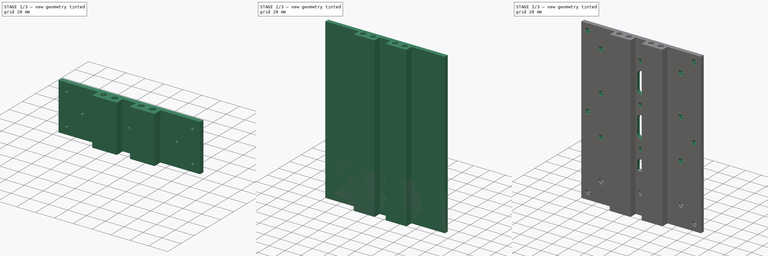
[diagram: build sequence overview — one tinted view per stage of 3, left to right]
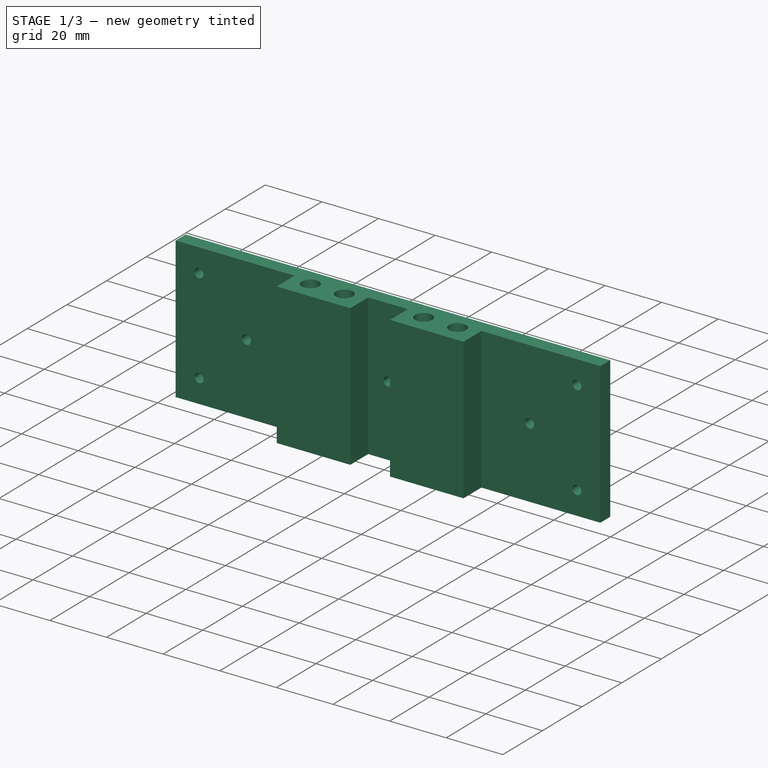
[diagram: stage 1 of 3 — iso view after this stage's code; geometry added in this stage tinted green]
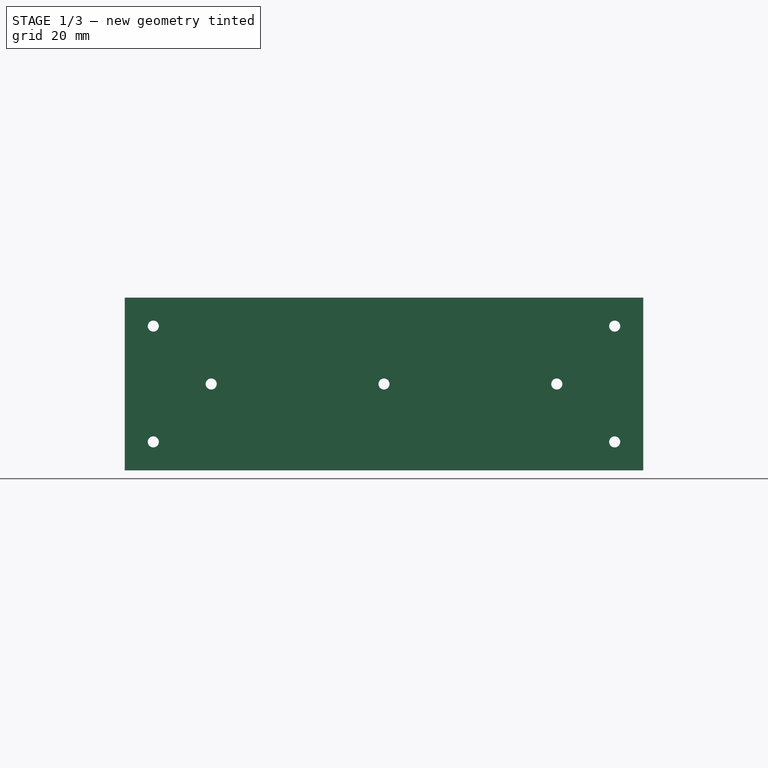
[diagram: stage 1 of 3 — front view after this stage's code; geometry added in this stage tinted green]
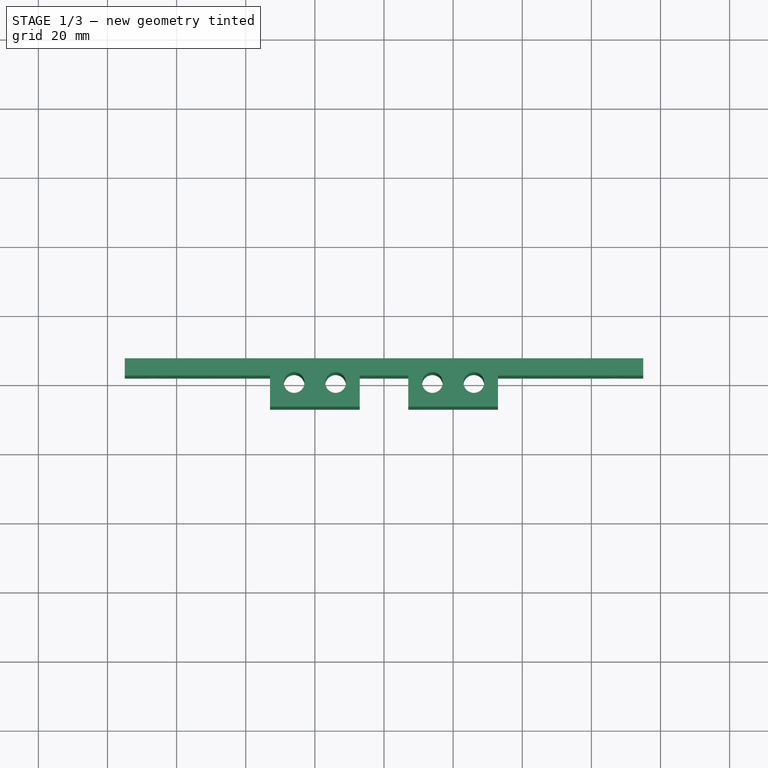
[diagram: stage 1 of 3 — top view after this stage's code; geometry added in this stage tinted green]
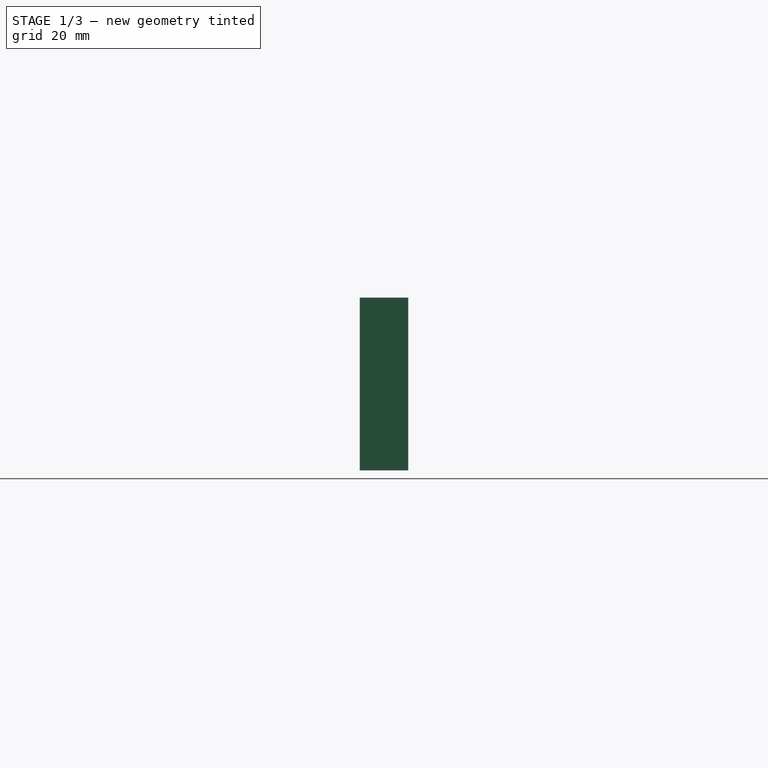
[diagram: stage 1 of 3 — right view after this stage's code; geometry added in this stage tinted green]
FCSTD DOCUMENT  (FreeCAD 0.21R33694 (Git))
Label: emaxx-kybernetes-topplate
License: All rights reserved
LicenseURL: http://en.wikipedia.org/wiki/All_rights_reserved
objects: Sketcher::SketchObject×6, PartDesign::Pocket×4, PartDesign::Pad×2, PartDesign::Body×2, App::Part×2, Spreadsheet::Sheet×1
note: 20 computed .brp shape members not serialized (recipe doc carries the construction recipe); baked Part::Feature solids carry a one-line shape summary decoded from their .brp

FEATURE [PartDesign::Body] Body
  Group = -> [Sketch,Pad,Sketch001,Pocket,Sketch002,Pocket001]
  Origin = -> Origin001
  Tip = -> Pocket001
FEATURE [App::Part] Part  label="center-plate"
  Group = -> [Body]
  Origin = -> Origin
FEATURE [Sketcher::SketchObject] Sketch003
  FullyConstrained = true
  MapMode = 5
  Support = -> [XY_Plane003]
  expr: Constraints[10] = <<parameters>>.chassis_rod_diameter
  expr: Constraints[11] = <<parameters>>.chassis_rod_diameter
  expr: Constraints[12] = <<parameters>>.chassis_rod_diameter
  expr: Constraints[13] = <<parameters>>.chassis_rod_diameter
  expr: Constraints[14] = <<parameters>>.chassis_rod_diameter
  expr: Constraints[20] = <<parameters>>.chassis_rod_diameter / 2 + <<parameters>>.chassis_rod_margin
  expr: Constraints[21] = <<parameters>>.chassis_rod_diameter / 2 + <<parameters>>.chassis_rod_margin
  expr: Constraints[22] = <<parameters>>.chassis_rod_diameter / 2 + <<parameters>>.chassis_rod_margin
  expr: Constraints[23] = <<parameters>>.chassis_rod_diameter / 2 + <<parameters>>.chassis_rod_margin
  expr: Constraints[24] = <<parameters>>.chassis_rod_diameter / 2 + <<parameters>>.chassis_rod_margin
  expr: Constraints[28] = <<parameters>>.chassis_rod_diameter / 2 + <<parameters>>.chassis_rod_margin - 5 mm
  expr: Constraints[33] = <<parameters>>.chassis_rod_diameter / 2 + <<parameters>>.chassis_rod_margin
  expr: Constraints[34] = <<parameters>>.plate_width / 2
  expr: Constraints[43] = <<parameters>>.plate_width / 2
  expr: Constraints[7] = <<parameters>>.chassis_rod_diameter
  expr: Constraints[8] = <<parameters>>.chassis_rod_diameter
  expr: Constraints[9] = <<parameters>>.chassis_rod_diameter
  sketch-geometry (18):
    g0: Circle CenterX=-26 CenterY=0 CenterZ=0 NormalX=0 NormalY=0 NormalZ=1 AngleXU=0 Radius=3
    g1: Circle CenterX=-14 CenterY=0 CenterZ=0 NormalX=0 NormalY=0 NormalZ=1 AngleXU=0 Radius=3
    g2: Circle CenterX=14 CenterY=0 CenterZ=0 NormalX=0 NormalY=0 NormalZ=1 AngleXU=0 Radius=3
    g3: Circle CenterX=26 CenterY=0 CenterZ=0 NormalX=0 NormalY=0 NormalZ=1 AngleXU=0 Radius=3
    g4: GeomPoint X=-20 Y=0 Z=0
    g5: GeomPoint X=20 Y=0 Z=0
    g6: LineSegment StartX=-75 StartY=7 StartZ=0 EndX=75 EndY=7 EndZ=0
    g7: LineSegment StartX=-33 StartY=-7 StartZ=0 EndX=-7 EndY=-7 EndZ=0
    g8: LineSegment StartX=7 StartY=-7 StartZ=0 EndX=33 EndY=-7 EndZ=0
    g9: LineSegment StartX=-7 StartY=2 StartZ=0 EndX=7 EndY=2 EndZ=0
    g10: LineSegment StartX=-7 StartY=2 StartZ=0 EndX=-7 EndY=-7 EndZ=0
    g11: LineSegment StartX=7 StartY=-7 StartZ=0 EndX=7 EndY=2 EndZ=0
    g12: LineSegment StartX=-75 StartY=7 StartZ=0 EndX=-75 EndY=2 EndZ=0
    g13: LineSegment StartX=-75 StartY=2 StartZ=0 EndX=-33 EndY=2 EndZ=0
    g14: LineSegment StartX=-33 StartY=2 StartZ=0 EndX=-33 EndY=-7 EndZ=0
    g15: LineSegment StartX=75 StartY=7 StartZ=0 EndX=75 EndY=2 EndZ=0
    g16: LineSegment StartX=33 StartY=-7 StartZ=0 EndX=33 EndY=2 EndZ=0
    g17: LineSegment StartX=33 StartY=2 StartZ=0 EndX=75 EndY=2 EndZ=0
  constraints (52):
    c: PointOnObject(g4,g-1)
    c: PointOnObject(g5,g-1)
    c: DistanceX(g-1,g5) = 20
    c: Horizontal(g4,g1)
    c: Horizontal(g4,g0)
    c: Horizontal(g2,g5)
    c: Horizontal(g5,g3)
    c: DistanceX(g2,g5) = 6
    c: DistanceX(g5,g3) = 6
    c: Diameter(g2) = 6
    c: Diameter(g3) = 6
    c: DistanceX(g4,g1) = 6
    c: DistanceX(g0,g4) = 6
    c: Diameter(g0) = 6
    c: Diameter(g1) = 6
    c: DistanceX(g4,g-1) = 20
    c: Horizontal(g6)
    c: Horizontal(g7)
    c: Horizontal(g8)
    c: Horizontal(g7,g8)
    c: DistanceX(g7,g0) = 7
    c: DistanceY(g7,g0) = 7
    c: DistanceX(g1,g7) = 7
    c: DistanceX(g3,g8) = 7
    c: DistanceX(g8,g2) = 7
    c: Horizontal(g9)
    c: Vertical(g7,g9)
    c: Vertical(g8,g9)
    c: DistanceY(g1,g9) = 2
    c: Coincident(g10,g9)
    c: Coincident(g10,g7)
    c: Coincident(g11,g8)
    c: Coincident(g11,g9)
    c: DistanceY(g0,g6) = 7
    c: DistanceX(g6,g-1) = 75
    c: Coincident(g12,g6)
    c: Vertical(g12)
    c: Horizontal(g12,g9)
    c: Coincident(g13,g12)
    c: Horizontal(g13)
    c: Vertical(g13,g7)
    c: Coincident(g14,g13)
    c: Coincident(g14,g7)
    c: DistanceX(g-1,g6) = 75
    c: Coincident(g15,g6)
    c: Vertical(g15)
    c: Horizontal(g9,g15)
    c: Coincident(g16,g8)
    c: Vertical(g16)
    c: Horizontal(g16,g9)
    c: Coincident(g17,g16)
    c: Coincident(g17,g15)
FEATURE [PartDesign::Pad] Pad001  label="ShortPlate"
  Direction = (0,0,1)
  Length = 50
  Length2 = 10
  Profile = -> Sketch003
  ReferenceAxis = -> Sketch003 [N_Axis]
  Type = 0
  expr: Length = <<parameters>>.plate_length / 4
FEATURE [Sketcher::SketchObject] Sketch004
  FullyConstrained = true
  MapMode = 5
  Placement = pos=(0,7,0) rot=(0,0.707107,0.707107;3.14159rad)
  Support = -> [Pad001]
  expr: Constraints[10] = <<parameters>>.plate_bolt_diameter
  expr: Constraints[11] = <<parameters>>.plate_bolt_diameter
  expr: Constraints[12] = <<parameters>>.plate_bolt_diameter
  expr: Constraints[13] = <<parameters>>.plate_nut_diameter / 2 + <<parameters>>.plate_thickness
  expr: Constraints[14] = <<parameters>>.plate_width / 2 - (<<parameters>>.plate_nut_diameter / 2 + <<parameters>>.plate_thickness)
  expr: Constraints[16] = <<parameters>>.plate_length / 4 - (<<parameters>>.plate_nut_diameter / 2 + <<parameters>>.plate_thickness)
  expr: Constraints[1] = <<parameters>>.plate_length / 4 / 2
  expr: Constraints[20] = <<parameters>>.plate_width / 2 - (<<parameters>>.plate_nut_diameter / 2 + <<parameters>>.plate_thickness)
  expr: Constraints[2] = <<parameters>>.plate_hole_spacing
  expr: Constraints[5] = <<parameters>>.plate_hole_spacing
  expr: Constraints[6] = <<parameters>>.plate_bolt_diameter
  expr: Constraints[7] = <<parameters>>.plate_bolt_diameter
  expr: Constraints[8] = <<parameters>>.plate_bolt_diameter
  expr: Constraints[9] = <<parameters>>.plate_bolt_diameter
  sketch-geometry (7):
    g0: Circle CenterX=0 CenterY=25 CenterZ=0 NormalX=0 NormalY=0 NormalZ=1 AngleXU=0 Radius=1.6
    g1: Circle CenterX=50 CenterY=25 CenterZ=0 NormalX=0 NormalY=0 NormalZ=1 AngleXU=0 Radius=1.6
    g2: Circle CenterX=-50 CenterY=25 CenterZ=0 NormalX=0 NormalY=0 NormalZ=1 AngleXU=0 Radius=1.6
    g3: Circle CenterX=-66.75 CenterY=41.75 CenterZ=0 NormalX=0 NormalY=0 NormalZ=1 AngleXU=0 Radius=1.6
    g4: Circle CenterX=-66.75 CenterY=8.25 CenterZ=0 NormalX=0 NormalY=0 NormalZ=1 AngleXU=0 Radius=1.6
    g5: Circle CenterX=66.75 CenterY=8.25 CenterZ=0 NormalX=0 NormalY=0 NormalZ=1 AngleXU=0 Radius=1.6
    g6: Circle CenterX=66.75 CenterY=41.75 CenterZ=0 NormalX=0 NormalY=0 NormalZ=1 AngleXU=0 Radius=1.6
  constraints (21):
    c: Vertical(g0,g-1)
    c: DistanceY(g-1,g0) = 25
    c: DistanceX(g0,g1) = 50
    c: Horizontal(g1,g0)
    c: Horizontal(g2,g0)
    c: DistanceX(g2,g0) = 50
    c: Diameter(g2) = 3.2
    c: Diameter(g0) = 3.2
    c: Diameter(g1) = 3.2
    c: Diameter(g6) = 3.2
    c: Diameter(g5) = 3.2
    c: Diameter(g3) = 3.2
    c: Diameter(g4) = 3.2
    c: DistanceY(g-1,g4) = 8.25
    c: DistanceX(g4,g-1) = 66.75
    c: Vertical(g3,g4)
    c: DistanceY(g-1,g3) = 41.75
    c: Horizontal(g6,g3)
    c: Horizontal(g5,g4)
    c: Vertical(g6,g5)
    c: DistanceX(g-1,g5) = 66.75
FEATURE [PartDesign::Pocket] Pocket002  label="ShortPlateBoltHoles"
  BaseFeature = -> Pad001
  Direction = (0,-1,2e-16)
  Length = 5
  Length2 = 5
  Profile = -> Sketch004
  ReferenceAxis = -> Sketch004 [N_Axis]
  Type = 0
  expr: Length = <<parameters>>.plate_thickness
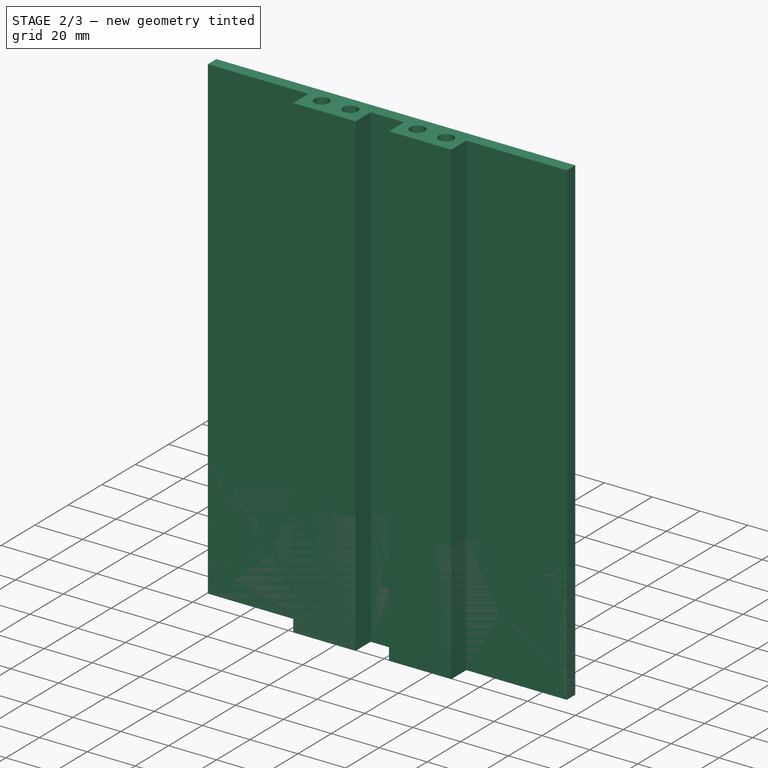
[diagram: stage 2 of 3 — iso view after this stage's code; geometry added in this stage tinted green]
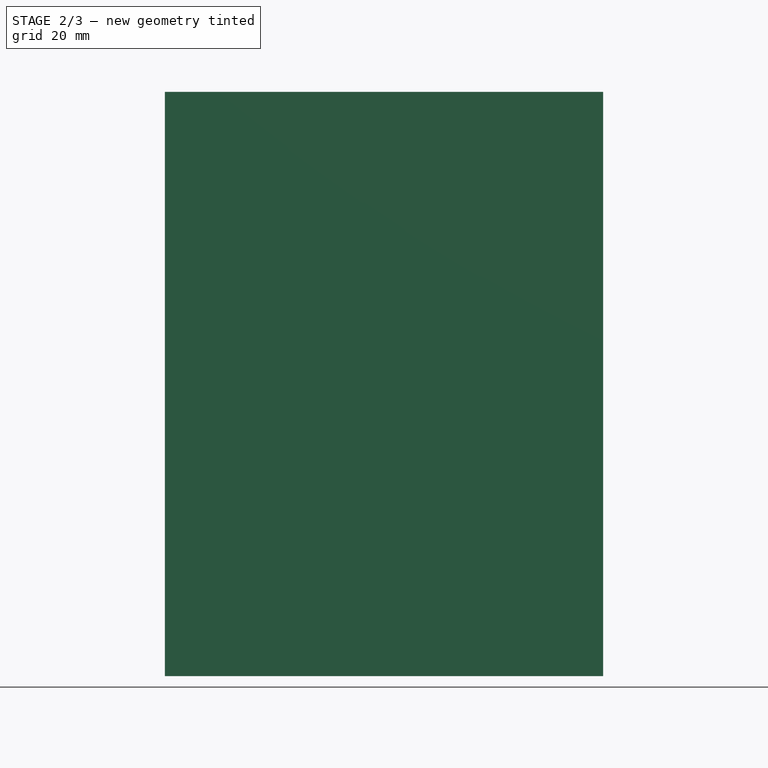
[diagram: stage 2 of 3 — front view after this stage's code; geometry added in this stage tinted green]
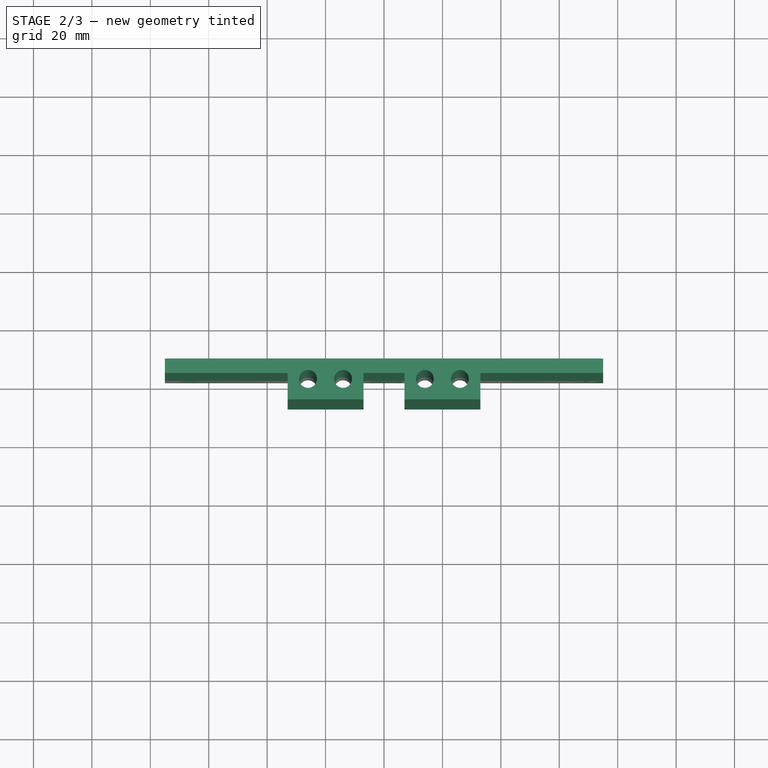
[diagram: stage 2 of 3 — top view after this stage's code; geometry added in this stage tinted green]
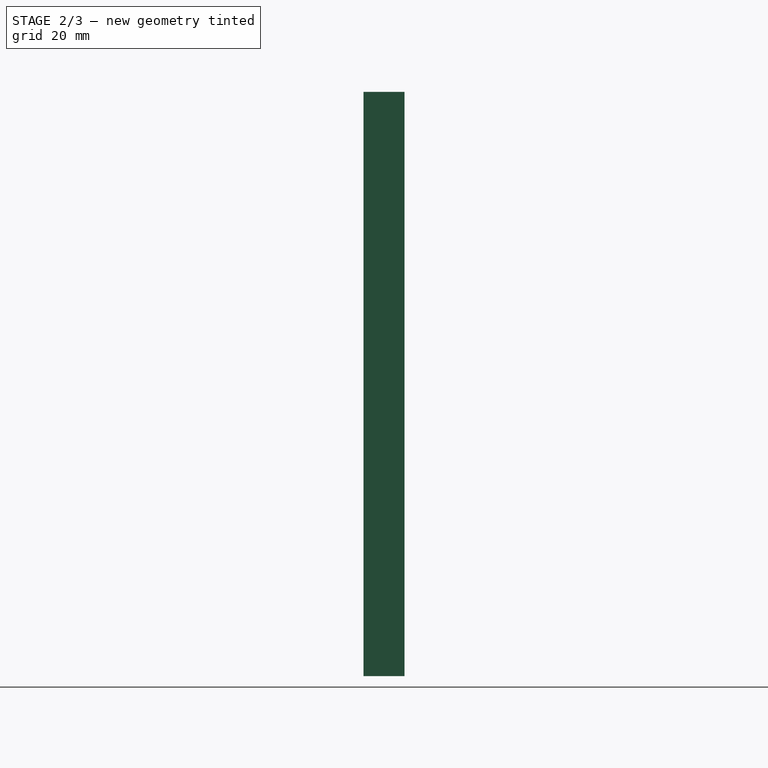
[diagram: stage 2 of 3 — right view after this stage's code; geometry added in this stage tinted green]
FEATURE [Spreadsheet::Sheet] Spreadsheet  label="parameters"
  cells = A1='plate_width; B1(plate_width)==15 cm; A2='plate_length; B2(plate_length)==20 cm; A3='plate_bolt_diameter; B3(plate_bolt_diameter)==3.2 mm; A4='plate_nut_diameter; B4(plate_nut_diameter)==6.5 mm; A5='plate_thickness; B5(plate_thickness)==5 mm; A6='chassis_rod_diameter; B6(chassis_rod_diameter)==6 mm; A7='chassis_rod_margin; B7(chassis_rod_margin)==4 mm; A8='hole_expansion; B8(hole_expansion)==0.25 mm; A9='plate_holt_spacing; B9(plate_hole_spacing)==5 cm; A10='plate_slot_width; B10(plate_slot_width)==10.5 mm; A11='plate_slot_margin; B11(plate_slot_margin)==15 mm
FEATURE [Sketcher::SketchObject] Sketch  label="PlateSketch"
  FullyConstrained = true
  MapMode = 5
  Support = -> [XY_Plane001]
  expr: Constraints[0] = <<parameters>>.chassis_rod_diameter + <<parameters>>.hole_expansion / 2
  expr: Constraints[12] = <<parameters>>.chassis_rod_diameter
  expr: Constraints[13] = <<parameters>>.chassis_rod_diameter
  expr: Constraints[16] = <<parameters>>.chassis_rod_diameter / 2 + <<parameters>>.chassis_rod_margin
  expr: Constraints[17] = <<parameters>>.chassis_rod_diameter / 2 + <<parameters>>.chassis_rod_margin
  expr: Constraints[18] = <<parameters>>.chassis_rod_diameter / 2 + <<parameters>>.chassis_rod_margin
  expr: Constraints[1] = <<parameters>>.chassis_rod_diameter + <<parameters>>.hole_expansion / 2
  expr: Constraints[20] = <<parameters>>.plate_width / 2
  expr: Constraints[21] = <<parameters>>.plate_width / 2
  expr: Constraints[22] = <<parameters>>.chassis_rod_diameter / 2 + <<parameters>>.chassis_rod_margin
  expr: Constraints[25] = <<parameters>>.plate_thickness
  expr: Constraints[2] = <<parameters>>.chassis_rod_diameter + <<parameters>>.hole_expansion / 2
  expr: Constraints[39] = <<parameters>>.chassis_rod_diameter / 2 + <<parameters>>.chassis_rod_margin
  expr: Constraints[3] = <<parameters>>.chassis_rod_diameter + <<parameters>>.hole_expansion / 2
  expr: Constraints[43] = <<parameters>>.chassis_rod_diameter / 2 + <<parameters>>.chassis_rod_margin
  expr: Constraints[4] = <<parameters>>.chassis_rod_diameter
  expr: Constraints[7] = <<parameters>>.chassis_rod_diameter
  sketch-geometry (18):
    g0: Circle CenterX=-14 CenterY=0 CenterZ=0 NormalX=0 NormalY=0 NormalZ=1 AngleXU=0 Radius=3.0625
    g1: Circle CenterX=14 CenterY=0 CenterZ=0 NormalX=0 NormalY=0 NormalZ=1 AngleXU=0 Radius=3.0625
    g2: Circle CenterX=-26 CenterY=0 CenterZ=0 NormalX=0 NormalY=0 NormalZ=1 AngleXU=0 Radius=3.0625
    g3: Circle CenterX=26 CenterY=0 CenterZ=0 NormalX=0 NormalY=0 NormalZ=1 AngleXU=0 Radius=3.0625
    g4: GeomPoint X=-20 Y=0 Z=0
    g5: GeomPoint X=20 Y=0 Z=0
    g6: LineSegment StartX=-75 StartY=7 StartZ=0 EndX=75 EndY=7 EndZ=0
    g7: LineSegment StartX=-75 StartY=7 StartZ=0 EndX=-75 EndY=2 EndZ=0
    g8: LineSegment StartX=75 StartY=7 StartZ=0 EndX=75 EndY=2 EndZ=0
    g9: LineSegment StartX=-33 StartY=-7 StartZ=0 EndX=-33 EndY=2 EndZ=0
    g10: LineSegment StartX=33 StartY=-7 StartZ=0 EndX=33 EndY=2 EndZ=0
    g11: LineSegment StartX=-75 StartY=2 StartZ=0 EndX=-33 EndY=2 EndZ=0
    g12: LineSegment StartX=33 StartY=2 StartZ=0 EndX=75 EndY=2 EndZ=0
    g13: LineSegment StartX=-33 StartY=-7 StartZ=0 EndX=-7 EndY=-7 EndZ=0
    g14: LineSegment StartX=33 StartY=-7 StartZ=0 EndX=7 EndY=-7 EndZ=0
    g15: LineSegment StartX=-7 StartY=2 StartZ=0 EndX=7 EndY=2 EndZ=0
    g16: LineSegment StartX=-7 StartY=2 StartZ=0 EndX=-7 EndY=-7 EndZ=0
    g17: LineSegment StartX=7 StartY=2 StartZ=0 EndX=7 EndY=-7 EndZ=0
  constraints (52):
    c: Diameter(g2) = 6.125
    c: Diameter(g0) = 6.125
    c: Diameter(g1) = 6.125
    c: Diameter(g3) = 6.125
    c: DistanceX(g2,g4) = 6
    c: Horizontal(g4,g0)
    c: Horizontal(g2,g4)
    c: DistanceX(g4,g0) = 6
    c: Horizontal(g4,g-1)
    c: DistanceX(g4,g-1) = 20
    c: Horizontal(g1,g5)
    c: Horizontal(g5,g3)
    c: DistanceX(g1,g5) = 6
    c: DistanceX(g5,g3) = 6
    c: DistanceX(g-1,g5) = 20
    c: Horizontal(g5,g-1)
    c: DistanceY(g9,g2) = 7
    c: DistanceX(g9,g2) = 7
    c: DistanceX(g3,g10) = 7
    c: Horizontal(g6)
    c: DistanceX(g6,g-1) = 75
    c: DistanceX(g-1,g6) = 75
    c: DistanceY(g2,g6) = 7
    c: Coincident(g7,g6)
    c: Vertical(g7)
    c: DistanceY(g7,g6) = 5
    c: Coincident(g8,g6)
    c: Vertical(g8)
    c: Horizontal(g8,g7)
    c: Vertical(g9)
    c: Vertical(g10)
    c: Horizontal(g10,g8)
    c: Horizontal(g9,g7)
    c: Coincident(g11,g7)
    c: Coincident(g11,g9)
    c: Coincident(g12,g10)
    c: Coincident(g12,g8)
    c: Coincident(g13,g9)
    c: Horizontal(g13)
    c: DistanceX(g0,g13) = 7
    c: Horizontal(g9,g10)
    c: Coincident(g14,g10)
    c: Horizontal(g14)
    c: DistanceX(g14,g1) = 7
    c: Horizontal(g15)
    c: Vertical(g15,g13)
    c: Vertical(g15,g14)
    c: Horizontal(g15,g9)
    c: Coincident(g16,g15)
    c: Coincident(g16,g13)
    c: Coincident(g17,g15)
    c: Coincident(g17,g14)
FEATURE [PartDesign::Pad] Pad  label="Plate"
  Direction = (0,0,1)
  Length = 200
  Length2 = 10
  Profile = -> Sketch
  ReferenceAxis = -> Sketch [N_Axis]
  Type = 0
  expr: Length = <<parameters>>.plate_length
FEATURE [Sketcher::SketchObject] Sketch005
  FullyConstrained = true
  MapMode = 5
  Placement = pos=(0,2,0) rot=(1,0,0;1.5708rad)
  Support = -> [Pocket002]
  expr: Constraints[126] = <<parameters>>.plate_nut_diameter
  expr: Constraints[127] = <<parameters>>.plate_nut_diameter
  expr: Constraints[128] = <<parameters>>.plate_nut_diameter
  expr: Constraints[129] = <<parameters>>.plate_nut_diameter
  expr: Constraints[130] = <<parameters>>.plate_nut_diameter
  expr: Constraints[131] = <<parameters>>.plate_nut_diameter
  expr: Constraints[132] = <<parameters>>.plate_nut_diameter
  expr: Constraints[133] = <<parameters>>.plate_length / 4 - <<parameters>>.plate_hole_spacing / 2
  expr: Constraints[134] = <<parameters>>.plate_hole_spacing
  expr: Constraints[135] = <<parameters>>.plate_hole_spacing
  expr: Constraints[138] = <<parameters>>.plate_width / 2 - <<parameters>>.plate_nut_diameter / 2 - <<parameters>>.plate_thickness
  expr: Constraints[139] = <<parameters>>.plate_width / 2 - <<parameters>>.plate_nut_diameter / 2 - <<parameters>>.plate_thickness
  expr: Constraints[142] = <<parameters>>.plate_length / 4 - (<<parameters>>.plate_nut_diameter / 2 + <<parameters>>.plate_thickness)
  expr: Constraints[145] = <<parameters>>.plate_nut_diameter / 2 + <<parameters>>.plate_thickness
  sketch-geometry (49):
    g0: LineSegment StartX=3.25 StartY=25 StartZ=0 EndX=1.625 EndY=27.8146 EndZ=0
    g1: LineSegment StartX=1.625 StartY=27.8146 StartZ=0 EndX=-1.625 EndY=27.8146 EndZ=0
    g2: LineSegment StartX=-1.625 StartY=27.8146 StartZ=0 EndX=-3.25 EndY=25 EndZ=0
    g3: LineSegment StartX=-3.25 StartY=25 StartZ=0 EndX=-1.625 EndY=22.1854 EndZ=0
    g4: LineSegment StartX=-1.625 StartY=22.1854 StartZ=0 EndX=1.625 EndY=22.1854 EndZ=0
    g5: LineSegment StartX=1.625 StartY=22.1854 StartZ=0 EndX=3.25 EndY=25 EndZ=0
    g6: Circle CenterX=0 CenterY=25 CenterZ=0 NormalX=0 NormalY=0 NormalZ=1 AngleXU=0 Radius=3.25
    g7: LineSegment StartX=51.625 StartY=22.1854 StartZ=0 EndX=53.25 EndY=25 EndZ=0
    g8: LineSegment StartX=53.25 StartY=25 StartZ=0 EndX=51.625 EndY=27.8146 EndZ=0
    g9: LineSegment StartX=51.625 StartY=27.8146 StartZ=0 EndX=48.375 EndY=27.8146 EndZ=0
    g10: LineSegment StartX=48.375 StartY=27.8146 StartZ=0 EndX=46.75 EndY=25 EndZ=0
    g11: LineSegment StartX=46.75 StartY=25 StartZ=0 EndX=48.375 EndY=22.1854 EndZ=0
    g12: LineSegment StartX=48.375 StartY=22.1854 StartZ=0 EndX=51.625 EndY=22.1854 EndZ=0
    g13: Circle CenterX=50 CenterY=25 CenterZ=0 NormalX=0 NormalY=0 NormalZ=1 AngleXU=0 Radius=3.25
    g14: LineSegment StartX=-48.375 StartY=22.1854 StartZ=0 EndX=-46.75 EndY=25 EndZ=0
    g15: LineSegment StartX=-46.75 StartY=25 StartZ=0 EndX=-48.375 EndY=27.8146 EndZ=0
    g16: LineSegment StartX=-48.375 StartY=27.8146 StartZ=0 EndX=-51.625 EndY=27.8146 EndZ=0
    g17: LineSegment StartX=-51.625 StartY=27.8146 StartZ=0 EndX=-53.25 EndY=25 EndZ=0
    g18: LineSegment StartX=-53.25 StartY=25 StartZ=0 EndX=-51.625 EndY=22.1854 EndZ=0
    g19: LineSegment StartX=-51.625 StartY=22.1854 StartZ=0 EndX=-48.375 EndY=22.1854 EndZ=0
    g20: Circle CenterX=-50 CenterY=25 CenterZ=0 NormalX=0 NormalY=0 NormalZ=1 AngleXU=0 Radius=3.25
    g21: LineSegment StartX=-63.5 StartY=41.75 StartZ=0 EndX=-65.125 EndY=44.5646 EndZ=0
    g22: LineSegment StartX=-65.125 StartY=44.5646 StartZ=0 EndX=-68.375 EndY=44.5646 EndZ=0
    g23: LineSegment StartX=-68.375 StartY=44.5646 StartZ=0 EndX=-70 EndY=41.75 EndZ=0
    g24: LineSegment StartX=-70 StartY=41.75 StartZ=0 EndX=-68.375 EndY=38.9354 EndZ=0
    g25: LineSegment StartX=-68.375 StartY=38.9354 StartZ=0 EndX=-65.125 EndY=38.9354 EndZ=0
    g26: LineSegment StartX=-65.125 StartY=38.9354 StartZ=0 EndX=-63.5 EndY=41.75 EndZ=0
    g27: Circle CenterX=-66.75 CenterY=41.75 CenterZ=0 NormalX=0 NormalY=0 NormalZ=1 AngleXU=0 Radius=3.25
    g28: LineSegment StartX=-65.125 StartY=5.43542 StartZ=0 EndX=-63.5 EndY=8.25 EndZ=0
    g29: LineSegment StartX=-63.5 StartY=8.25 StartZ=0 EndX=-65.125 EndY=11.0646 EndZ=0
    g30: LineSegment StartX=-65.125 StartY=11.0646 StartZ=0 EndX=-68.375 EndY=11.0646 EndZ=0
    g31: LineSegment StartX=-68.375 StartY=11.0646 StartZ=0 EndX=-70 EndY=8.25 EndZ=0
    g32: LineSegment StartX=-70 StartY=8.25 StartZ=0 EndX=-68.375 EndY=5.43542 EndZ=0
    g33: LineSegment StartX=-68.375 StartY=5.43542 StartZ=0 EndX=-65.125 EndY=5.43542 EndZ=0
    g34: Circle CenterX=-66.75 CenterY=8.25 CenterZ=0 NormalX=0 NormalY=0 NormalZ=1 AngleXU=0 Radius=3.25
    g35: LineSegment StartX=68.375 StartY=5.43542 StartZ=0 EndX=70 EndY=8.25 EndZ=0
    g36: LineSegment StartX=70 StartY=8.25 StartZ=0 EndX=68.375 EndY=11.0646 EndZ=0
    g37: LineSegment StartX=68.375 StartY=11.0646 StartZ=0 EndX=65.125 EndY=11.0646 EndZ=0
    g38: LineSegment StartX=65.125 StartY=11.0646 StartZ=0 EndX=63.5 EndY=8.25 EndZ=0
    g39: LineSegment StartX=63.5 StartY=8.25 StartZ=0 EndX=65.125 EndY=5.43542 EndZ=0
    g40: LineSegment StartX=65.125 StartY=5.43542 StartZ=0 EndX=68.375 EndY=5.43542 EndZ=0
    g41: Circle CenterX=66.75 CenterY=8.25 CenterZ=0 NormalX=0 NormalY=0 NormalZ=1 AngleXU=0 Radius=3.25
    g42: LineSegment StartX=70 StartY=41.75 StartZ=0 EndX=68.375 EndY=44.5646 EndZ=0
    g43: LineSegment StartX=68.375 StartY=44.5646 StartZ=0 EndX=65.125 EndY=44.5646 EndZ=0
    g44: LineSegment StartX=65.125 StartY=44.5646 StartZ=0 EndX=63.5 EndY=41.75 EndZ=0
    g45: LineSegment StartX=63.5 StartY=41.75 StartZ=0 EndX=65.125 EndY=38.9354 EndZ=0
    g46: LineSegment StartX=65.125 StartY=38.9354 StartZ=0 EndX=68.375 EndY=38.9354 EndZ=0
    g47: LineSegment StartX=68.375 StartY=38.9354 StartZ=0 EndX=70 EndY=41.75 EndZ=0
    g48: Circle CenterX=66.75 CenterY=41.75 CenterZ=0 NormalX=0 NormalY=0 NormalZ=1 AngleXU=0 Radius=3.25
  constraints (119):
    c: Coincident(g0,g1)
    c: Coincident(g1,g2)
    c: Coincident(g2,g3)
    c: Coincident(g3,g4)
    c: Coincident(g4,g5)
    c: Coincident(g5,g0)
    c: Equal(g0, g1-g5) x5
    c: PointOnObject(g0,g6)
    c: PointOnObject(g1,g6)
    c: PointOnObject(g2,g6)
    c: PointOnObject(g3,g6)
    c: PointOnObject(g4,g6)
    c: PointOnObject(g5,g6)
    c: Coincident(g7,g8)
    c: Coincident(g8,g9)
    c: Coincident(g9,g10)
    c: Coincident(g10,g11)
    c: Coincident(g11,g12)
    c: Coincident(g12,g7)
    c: Equal(g7, g8-g12) x5
    c: PointOnObject(g7,g13)
    c: PointOnObject(g8,g13)
    c: PointOnObject(g9,g13)
    c: PointOnObject(g10,g13)
    c: PointOnObject(g11,g13)
    c: PointOnObject(g12,g13)
    c: Coincident(g14,g15)
    c: Coincident(g15,g16)
    c: Coincident(g16,g17)
    c: Coincident(g17,g18)
    c: Coincident(g18,g19)
    c: Coincident(g19,g14)
    c: Equal(g14, g15-g19) x5
    c: PointOnObject(g14,g20)
    c: PointOnObject(g15,g20)
    c: PointOnObject(g16,g20)
    c: PointOnObject(g17,g20)
    c: PointOnObject(g18,g20)
    c: PointOnObject(g19,g20)
    c: Coincident(g21,g22)
    c: Coincident(g22,g23)
    c: Coincident(g23,g24)
    c: Coincident(g24,g25)
    c: Coincident(g25,g26)
    c: Coincident(g26,g21)
    c: Equal(g21, g22-g26) x5
    c: PointOnObject(g21,g27)
    c: PointOnObject(g22,g27)
    c: PointOnObject(g23,g27)
    c: PointOnObject(g24,g27)
    c: PointOnObject(g25,g27)
    c: PointOnObject(g26,g27)
    c: Coincident(g28,g29)
    c: Coincident(g29,g30)
    c: Coincident(g30,g31)
    c: Coincident(g31,g32)
    c: Coincident(g32,g33)
    c: Coincident(g33,g28)
    c: Equal(g28, g29-g33) x5
    c: PointOnObject(g28,g34)
    c: PointOnObject(g29,g34)
    c: PointOnObject(g30,g34)
    c: PointOnObject(g31,g34)
    c: PointOnObject(g32,g34)
    c: PointOnObject(g33,g34)
    c: Coincident(g35,g36)
    c: Coincident(g36,g37)
    c: Coincident(g37,g38)
    c: Coincident(g38,g39)
    c: Coincident(g39,g40)
    c: Coincident(g40,g35)
    c: Equal(g35, g36-g40) x5
    c: PointOnObject(g35,g41)
    c: PointOnObject(g36,g41)
    c: PointOnObject(g37,g41)
    c: PointOnObject(g38,g41)
    c: PointOnObject(g39,g41)
    c: PointOnObject(g40,g41)
    c: Coincident(g42,g43)
    c: Coincident(g43,g44)
    c: Coincident(g44,g45)
    c: Coincident(g45,g46)
    c: Coincident(g46,g47)
    c: Coincident(g47,g42)
    c: Equal(g42, g43-g47) x5
    c: PointOnObject(g42,g48)
    c: PointOnObject(g43,g48)
    c: PointOnObject(g44,g48)
    c: PointOnObject(g45,g48)
    c: PointOnObject(g46,g48)
    c: PointOnObject(g47,g48)
    c: Horizontal(g44,g42)
    c: Horizontal(g10,g7)
    c: Horizontal(g0,g2)
    c: Horizontal(g17,g14)
    c: Horizontal(g23,g21)
    c: Horizontal(g31,g28)
    c: Vertical(g6,g-1)
    c: DistanceX(g2,g0) = 6.5
    c: DistanceX(g44,g42) = 6.5
    c: DistanceX(g10,g7) = 6.5
    c: DistanceX(g38,g35) = 6.5
    c: DistanceX(g17,g14) = 6.5
    c: DistanceX(g23,g21) = 6.5
    c: DistanceX(g31,g28) = 6.5
    c: DistanceY(g-1,g6) = 25
    c: DistanceX(g6,g13) = 50
    c: DistanceX(g20,g6) = 50
    c: Horizontal(g20,g6)
    c: Horizontal(g6,g13)
    c: DistanceX(g34,g-1) = 66.75
    c: DistanceX(g6,g41) = 66.75
    c: Vertical(g27,g34)
    c: Vertical(g41,g48)
    c: DistanceY(g-1,g27) = 41.75
    c: Horizontal(g48,g27)
    c: Horizontal(g41,g34)
    c: DistanceY(g-1,g41) = 8.25
    c: Horizontal(g38,g35)
FEATURE [PartDesign::Pocket] Pocket003  label="ShortPlateNutCatches"
  BaseFeature = -> Pocket002
  Direction = (0,1,-2e-16)
  Length = 2
  Length2 = 5
  Profile = -> Sketch005
  ReferenceAxis = -> Sketch005 [N_Axis]
  Type = 0
FEATURE [PartDesign::Body] Body001  label="ShortPlateBody"
  Group = -> [Sketch003,Pad001,Sketch004,Pocket002,Sketch005,Pocket003]
  Origin = -> Origin003
  Tip = -> Pocket003
FEATURE [App::Part] Part001  label="short-plate"
  Group = -> [Body001]
  Origin = -> Origin002
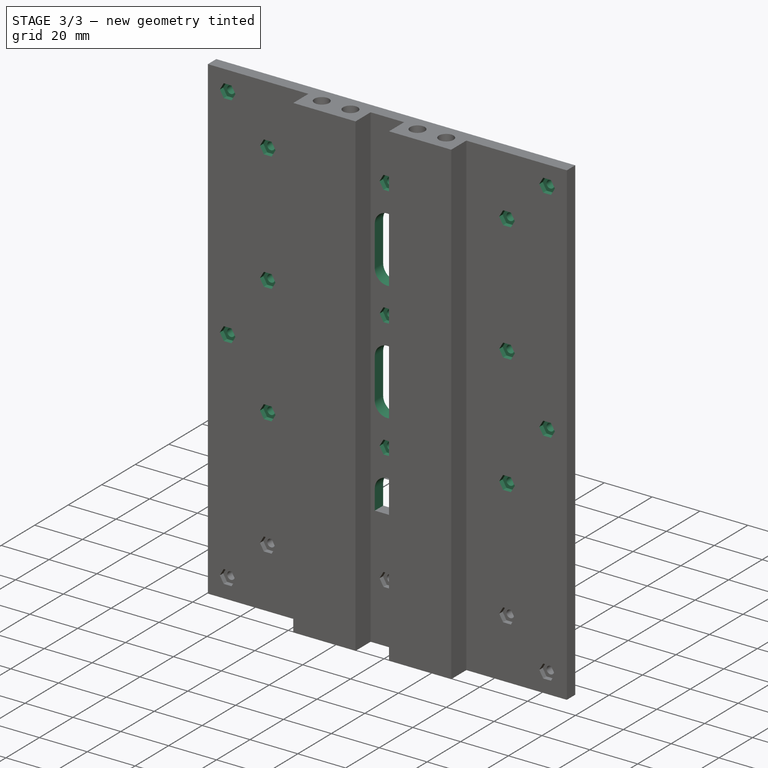
[diagram: stage 3 of 3 — iso view after this stage's code; geometry added in this stage tinted green]
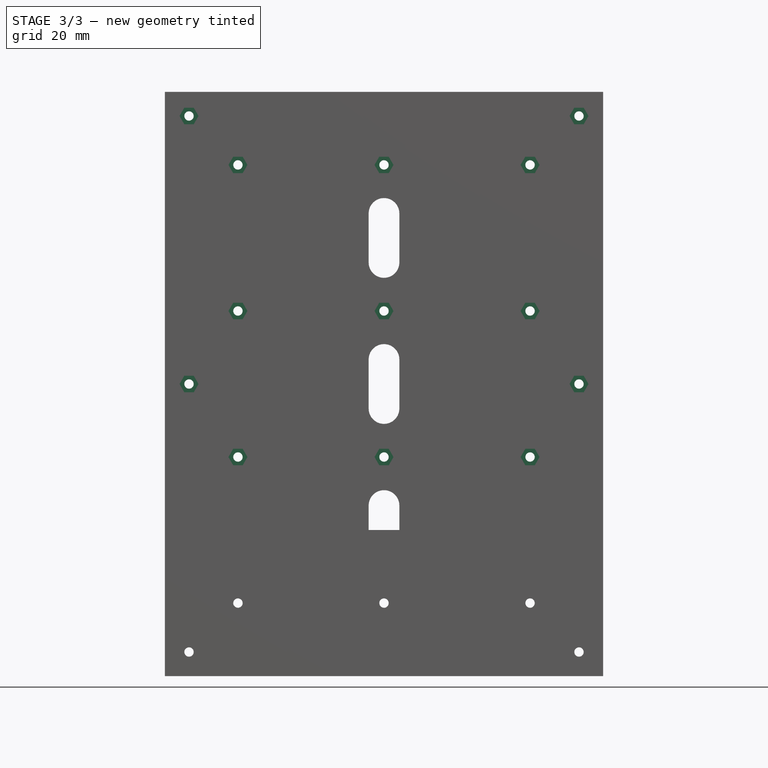
[diagram: stage 3 of 3 — front view after this stage's code; geometry added in this stage tinted green]
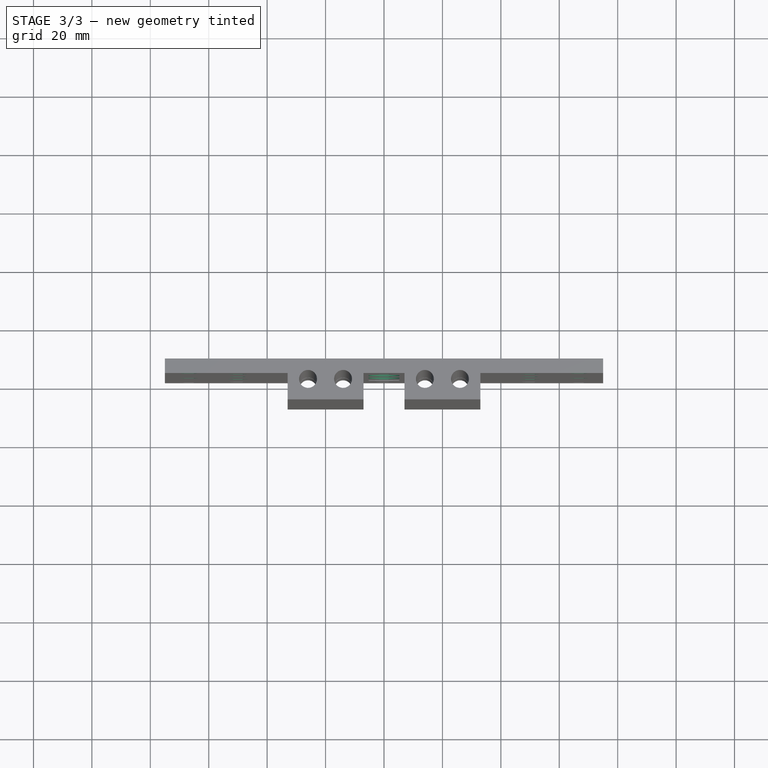
[diagram: stage 3 of 3 — top view after this stage's code; geometry added in this stage tinted green]
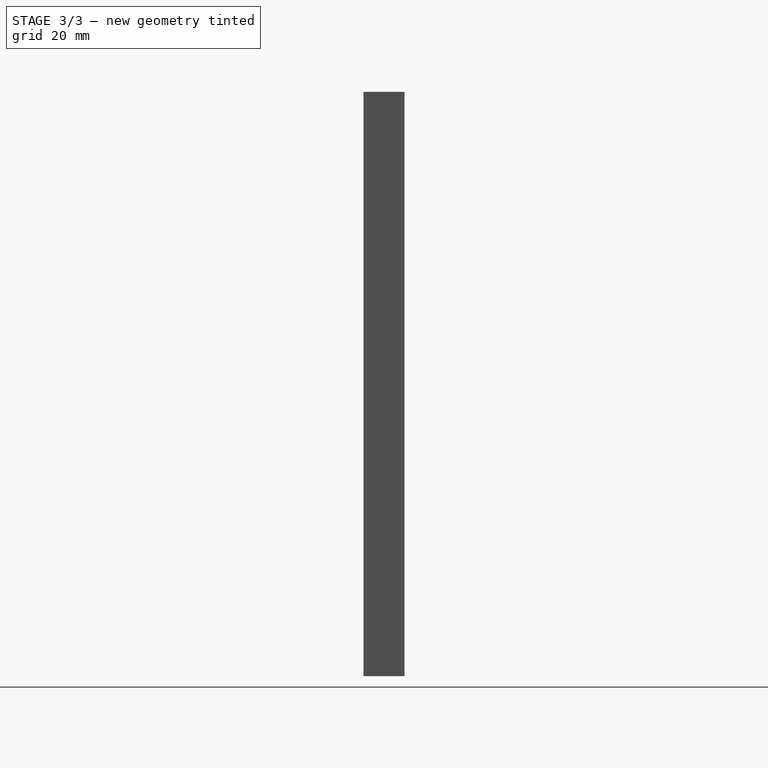
[diagram: stage 3 of 3 — right view after this stage's code; geometry added in this stage tinted green]
FEATURE [Sketcher::SketchObject] Sketch001  label="BoltHoleSketch"
  FullyConstrained = true
  MapMode = 5
  Placement = pos=(0,7,0) rot=(0,0.707107,0.707107;3.14159rad)
  Support = -> [Pad]
  expr: Constraints[1] = (<<parameters>>.plate_length + <<parameters>>.plate_hole_spacing) / 2
  expr: Constraints[22] = <<parameters>>.plate_hole_spacing
  expr: Constraints[23] = <<parameters>>.plate_hole_spacing
  expr: Constraints[24] = <<parameters>>.plate_hole_spacing
  expr: Constraints[25] = <<parameters>>.plate_bolt_diameter
  expr: Constraints[26] = <<parameters>>.plate_bolt_diameter
  expr: Constraints[27] = <<parameters>>.plate_bolt_diameter
  expr: Constraints[28] = <<parameters>>.plate_bolt_diameter
  expr: Constraints[29] = <<parameters>>.plate_bolt_diameter
  expr: Constraints[2] = <<parameters>>.plate_bolt_diameter
  expr: Constraints[30] = <<parameters>>.plate_bolt_diameter
  expr: Constraints[31] = <<parameters>>.plate_bolt_diameter
  expr: Constraints[32] = <<parameters>>.plate_bolt_diameter
  expr: Constraints[33] = <<parameters>>.plate_bolt_diameter
  expr: Constraints[34] = <<parameters>>.plate_bolt_diameter
  expr: Constraints[35] = <<parameters>>.plate_bolt_diameter
  expr: Constraints[43] = <<parameters>>.plate_slot_width
  expr: Constraints[44] = <<parameters>>.plate_slot_margin + <<parameters>>.plate_bolt_diameter / 2
  expr: Constraints[45] = <<parameters>>.plate_slot_margin + <<parameters>>.plate_bolt_diameter / 2
  expr: Constraints[5] = <<parameters>>.plate_hole_spacing
  expr: Constraints[60] = <<parameters>>.plate_slot_margin + <<parameters>>.plate_bolt_diameter / 2
  expr: Constraints[61] = <<parameters>>.plate_slot_margin + <<parameters>>.plate_bolt_diameter / 2
  expr: Constraints[62] = <<parameters>>.plate_slot_margin + <<parameters>>.plate_bolt_diameter / 2
  expr: Constraints[63] = <<parameters>>.plate_slot_margin + <<parameters>>.plate_bolt_diameter / 2
  expr: Constraints[64] = <<parameters>>.plate_slot_width
  expr: Constraints[65] = <<parameters>>.plate_slot_width
  expr: Constraints[66] = <<parameters>>.plate_width / 2 - <<parameters>>.plate_nut_diameter / 2 - <<parameters>>.plate_thickness
  expr: Constraints[67] = <<parameters>>.plate_width / 2 - <<parameters>>.plate_nut_diameter / 2 - <<parameters>>.plate_thickness
  expr: Constraints[68] = <<parameters>>.plate_bolt_diameter
  expr: Constraints[69] = <<parameters>>.plate_bolt_diameter
  expr: Constraints[6] = <<parameters>>.plate_hole_spacing
  expr: Constraints[71] = <<parameters>>.plate_nut_diameter / 2 + <<parameters>>.plate_thickness
  expr: Constraints[76] = <<parameters>>.plate_length / 2
  expr: Constraints[77] = <<parameters>>.plate_bolt_diameter
  expr: Constraints[78] = <<parameters>>.plate_bolt_diameter
  expr: Constraints[81] = <<parameters>>.plate_length - <<parameters>>.plate_nut_diameter / 2 - <<parameters>>.plate_thickness
  expr: Constraints[82] = <<parameters>>.plate_bolt_diameter
  expr: Constraints[83] = <<parameters>>.plate_bolt_diameter
  sketch-geometry (30):
    g0: Circle CenterX=0 CenterY=125 CenterZ=0 NormalX=0 NormalY=0 NormalZ=1 AngleXU=0 Radius=1.6
    g1: Circle CenterX=-50 CenterY=125 CenterZ=0 NormalX=0 NormalY=0 NormalZ=1 AngleXU=0 Radius=1.6
    g2: Circle CenterX=50 CenterY=125 CenterZ=0 NormalX=0 NormalY=0 NormalZ=1 AngleXU=0 Radius=1.6
    g3: Circle CenterX=-50 CenterY=75 CenterZ=0 NormalX=0 NormalY=0 NormalZ=1 AngleXU=0 Radius=1.6
    g4: Circle CenterX=0 CenterY=75 CenterZ=0 NormalX=0 NormalY=0 NormalZ=1 AngleXU=0 Radius=1.6
    g5: Circle CenterX=50 CenterY=75 CenterZ=0 NormalX=0 NormalY=0 NormalZ=1 AngleXU=0 Radius=1.6
    g6: Circle CenterX=-50 CenterY=175 CenterZ=0 NormalX=0 NormalY=0 NormalZ=1 AngleXU=0 Radius=1.6
    g7: Circle CenterX=50 CenterY=175 CenterZ=0 NormalX=0 NormalY=0 NormalZ=1 AngleXU=0 Radius=1.6
    g8: Circle CenterX=-50 CenterY=25 CenterZ=0 NormalX=0 NormalY=0 NormalZ=1 AngleXU=0 Radius=1.6
    g9: Circle CenterX=0 CenterY=25 CenterZ=0 NormalX=0 NormalY=0 NormalZ=1 AngleXU=0 Radius=1.6
    g10: Circle CenterX=50 CenterY=25 CenterZ=0 NormalX=0 NormalY=0 NormalZ=1 AngleXU=0 Radius=1.6
    g11: Circle CenterX=0 CenterY=175 CenterZ=0 NormalX=0 NormalY=0 NormalZ=1 AngleXU=0 Radius=1.6
    g12: ArcOfCircle CenterX=0 CenterY=158.4 CenterZ=0 NormalX=0 NormalY=0 NormalZ=1 AngleXU=0 Radius=5.25 StartAngle=8e-16 EndAngle=3.14159
    g13: ArcOfCircle CenterX=0 CenterY=141.6 CenterZ=0 NormalX=0 NormalY=0 NormalZ=1 AngleXU=0 Radius=5.25 StartAngle=3.14159 EndAngle=6.28319
    g14: LineSegment StartX=-5.25 StartY=158.4 StartZ=0 EndX=-5.25 EndY=141.6 EndZ=0
    g15: LineSegment StartX=5.25 StartY=141.6 StartZ=0 EndX=5.25 EndY=158.4 EndZ=0
    g16: ArcOfCircle CenterX=0 CenterY=108.4 CenterZ=0 NormalX=0 NormalY=0 NormalZ=1 AngleXU=0 Radius=5.25 StartAngle=1.1e-15 EndAngle=3.14159
    g17: ArcOfCircle CenterX=0 CenterY=91.6 CenterZ=0 NormalX=0 NormalY=0 NormalZ=1 AngleXU=0 Radius=5.25 StartAngle=3.14159 EndAngle=6.28319
    g18: LineSegment StartX=-5.25 StartY=108.4 StartZ=0 EndX=-5.25 EndY=91.6 EndZ=0
    g19: LineSegment StartX=5.25 StartY=91.6 StartZ=0 EndX=5.25 EndY=108.4 EndZ=0
    g20: ArcOfCircle CenterX=0 CenterY=58.4 CenterZ=0 NormalX=0 NormalY=0 NormalZ=1 AngleXU=0 Radius=5.25 StartAngle=4e-16 EndAngle=3.14159
    g21: ArcOfCircle CenterX=0 CenterY=41.6 CenterZ=0 NormalX=0 NormalY=0 NormalZ=1 AngleXU=0 Radius=5.25 StartAngle=3.14159 EndAngle=6.28319
    g22: LineSegment StartX=-5.25 StartY=58.4 StartZ=0 EndX=-5.25 EndY=41.6 EndZ=0
    g23: LineSegment StartX=5.25 StartY=41.6 StartZ=0 EndX=5.25 EndY=58.4 EndZ=0
    g24: Circle CenterX=66.75 CenterY=191.75 CenterZ=0 NormalX=0 NormalY=0 NormalZ=1 AngleXU=0 Radius=1.6
    g25: Circle CenterX=-66.75 CenterY=191.75 CenterZ=0 NormalX=0 NormalY=0 NormalZ=1 AngleXU=0 Radius=1.6
    g26: Circle CenterX=-66.75 CenterY=8.25 CenterZ=0 NormalX=0 NormalY=0 NormalZ=1 AngleXU=0 Radius=1.6
    g27: Circle CenterX=66.75 CenterY=8.25 CenterZ=0 NormalX=0 NormalY=0 NormalZ=1 AngleXU=0 Radius=1.6
    g28: Circle CenterX=-66.75 CenterY=100 CenterZ=0 NormalX=0 NormalY=0 NormalZ=1 AngleXU=0 Radius=1.6
    g29: Circle CenterX=66.75 CenterY=100 CenterZ=0 NormalX=0 NormalY=0 NormalZ=1 AngleXU=0 Radius=1.6
  constraints (84):
    c: Vertical(g0,g-1)
    c: DistanceY(g-1,g0) = 125
    c: Diameter(g0) = 3.2
    c: Horizontal(g1,g0)
    c: Horizontal(g0,g2)
    c: DistanceX(g1,g0) = 50
    c: DistanceX(g0,g2) = 50
    c: Vertical(g11,g-1)
    c: Vertical(g4,g-1)
    c: Vertical(g9,g-1)
    c: Horizontal(g10,g9)
    c: Horizontal(g8,g9)
    c: Horizontal(g3,g4)
    c: Horizontal(g4,g5)
    c: Horizontal(g6,g11)
    c: Horizontal(g11,g7)
    c: Vertical(g6,g1)
    c: Vertical(g3,g1)
    c: Vertical(g8,g3)
    c: Vertical(g10,g5)
    c: Vertical(g5,g2)
    c: Vertical(g2,g7)
    c: DistanceY(g0,g11) = 50
    c: DistanceY(g4,g0) = 50
    c: DistanceY(g9,g4) = 50
    c: Diameter(g1) = 3.2
    c: Diameter(g2) = 3.2
    c: Diameter(g6) = 3.2
    c: Diameter(g11) = 3.2
    c: Diameter(g7) = 3.2
    c: Diameter(g3) = 3.2
    c: Diameter(g4) = 3.2
    c: Diameter(g5) = 3.2
    c: Diameter(g8) = 3.2
    c: Diameter(g9) = 3.2
    c: Diameter(g10) = 3.2
    c: Tangent(g12,g14) = -1.5708
    c: Tangent(g14,g13) = -1.5708
    c: Tangent(g13,g15) = -1.5708
    c: Tangent(g15,g12) = -1.5708
    c: Equal(g12,g13)
    c: PointOnObject(g12,g-2)
    c: PointOnObject(g13,g-2)
    c: DistanceX(g12,g12) = 10.5
    c: DistanceY(g12,g11) = 16.6
    c: DistanceY(g0,g13) = 16.6
    c: Tangent(g16,g18) = -1.5708
    c: Tangent(g18,g17) = -1.5708
    c: Tangent(g17,g19) = -1.5708
    c: Tangent(g19,g16) = -1.5708
    c: Equal(g16,g17)
    c: PointOnObject(g16,g-2)
    c: PointOnObject(g17,g-2)
    c: Tangent(g20,g22) = -1.5708
    c: Tangent(g22,g21) = -1.5708
    c: Tangent(g21,g23) = -1.5708
    c: Tangent(g23,g20) = -1.5708
    c: Equal(g20,g21)
    c: PointOnObject(g20,g-2)
    c: PointOnObject(g21,g-2)
    c: DistanceY(g20,g4) = 16.6
    c: DistanceY(g9,g21) = 16.6
    c: DistanceY(g16,g0) = 16.6
    c: DistanceY(g4,g17) = 16.6
    c: DistanceX(g16,g16) = 10.5
    c: DistanceX(g20,g20) = 10.5
    c: DistanceX(g26,g-1) = 66.75
    c: DistanceX(g-1,g27) = 66.75
    c: Diameter(g26) = 3.2
    c: Diameter(g27) = 3.2
    c: Horizontal(g26,g27)
    c: DistanceY(g-1,g26) = 8.25
    c: Vertical(g28,g26)
    c: Vertical(g25,g28)
    c: Vertical(g24,g29)
    c: Vertical(g29,g27)
    c: DistanceY(g-1,g29) = 100
    c: Diameter(g29) = 3.2
    c: Diameter(g28) = 3.2
    c: Horizontal(g28,g29)
    c: Horizontal(g25,g24)
    c: DistanceY(g-1,g24) = 191.75
    c: Diameter(g25) = 3.2
    c: Diameter(g24) = 3.2
FEATURE [PartDesign::Pocket] Pocket  label="PlateBoltHoles"
  BaseFeature = -> Pad
  Direction = (0,-1,2e-16)
  Length = 5
  Length2 = 5
  Profile = -> Sketch001
  ReferenceAxis = -> Sketch001 [N_Axis]
  Type = 0
  expr: Length = <<parameters>>.plate_thickness
FEATURE [Sketcher::SketchObject] Sketch002  label="NutCatchSketch"
  FullyConstrained = true
  MapMode = 5
  Placement = pos=(0,2,0) rot=(1,0,0;1.5708rad)
  Support = -> [Pocket]
  expr: Constraints[107] = <<parameters>>.plate_hole_spacing
  expr: Constraints[109] = <<parameters>>.plate_hole_spacing
  expr: Constraints[110] = <<parameters>>.plate_length - <<parameters>>.plate_hole_spacing / 2
  expr: Constraints[228] = <<parameters>>.plate_hole_spacing
  expr: Constraints[229] = <<parameters>>.plate_hole_spacing
  expr: Constraints[230] = <<parameters>>.plate_hole_spacing
  expr: Constraints[231] = <<parameters>>.plate_nut_diameter
  expr: Constraints[232] = <<parameters>>.plate_nut_diameter
  expr: Constraints[233] = <<parameters>>.plate_nut_diameter
  expr: Constraints[235] = <<parameters>>.plate_nut_diameter
  expr: Constraints[237] = <<parameters>>.plate_nut_diameter
  expr: Constraints[239] = <<parameters>>.plate_nut_diameter
  expr: Constraints[241] = <<parameters>>.plate_nut_diameter
  expr: Constraints[243] = <<parameters>>.plate_nut_diameter
  expr: Constraints[245] = <<parameters>>.plate_nut_diameter
  expr: Constraints[247] = <<parameters>>.plate_nut_diameter
  expr: Constraints[249] = <<parameters>>.plate_nut_diameter
  expr: Constraints[251] = <<parameters>>.plate_nut_diameter
  expr: Constraints[355] = <<parameters>>.plate_nut_diameter
  expr: Constraints[357] = <<parameters>>.plate_nut_diameter
  expr: Constraints[359] = <<parameters>>.plate_nut_diameter
  expr: Constraints[361] = <<parameters>>.plate_nut_diameter
  expr: Constraints[363] = <<parameters>>.plate_nut_diameter
  expr: Constraints[365] = <<parameters>>.plate_nut_diameter
  expr: Constraints[373] = <<parameters>>.plate_width / 2 - <<parameters>>.plate_nut_diameter / 2 - <<parameters>>.plate_thickness
  expr: Constraints[374] = <<parameters>>.plate_width / 2 - <<parameters>>.plate_nut_diameter / 2 - <<parameters>>.plate_thickness
  expr: Constraints[375] = <<parameters>>.plate_nut_diameter / 2 + <<parameters>>.plate_thickness
  expr: Constraints[376] = <<parameters>>.plate_length / 2
  expr: Constraints[377] = <<parameters>>.plate_length - <<parameters>>.plate_nut_diameter / 2 - <<parameters>>.plate_thickness
  sketch-geometry (126):
    g0: LineSegment StartX=-48.375 StartY=122.185 StartZ=0 EndX=-46.75 EndY=125 EndZ=0
    g1: LineSegment StartX=-46.75 StartY=125 StartZ=0 EndX=-48.375 EndY=127.815 EndZ=0
    g2: LineSegment StartX=-48.375 StartY=127.815 StartZ=0 EndX=-51.625 EndY=127.815 EndZ=0
    g3: LineSegment StartX=-51.625 StartY=127.815 StartZ=0 EndX=-53.25 EndY=125 EndZ=0
    g4: LineSegment StartX=-53.25 StartY=125 StartZ=0 EndX=-51.625 EndY=122.185 EndZ=0
    g5: LineSegment StartX=-51.625 StartY=122.185 StartZ=0 EndX=-48.375 EndY=122.185 EndZ=0
    g6: Circle CenterX=-50 CenterY=125 CenterZ=0 NormalX=0 NormalY=0 NormalZ=1 AngleXU=0 Radius=3.25
    g7: LineSegment StartX=1.625 StartY=122.185 StartZ=0 EndX=3.25 EndY=125 EndZ=0
    g8: LineSegment StartX=3.25 StartY=125 StartZ=0 EndX=1.625 EndY=127.815 EndZ=0
    g9: LineSegment StartX=1.625 StartY=127.815 StartZ=0 EndX=-1.625 EndY=127.815 EndZ=0
    g10: LineSegment StartX=-1.625 StartY=127.815 StartZ=0 EndX=-3.25 EndY=125 EndZ=0
    g11: LineSegment StartX=-3.25 StartY=125 StartZ=0 EndX=-1.625 EndY=122.185 EndZ=0
    g12: LineSegment StartX=-1.625 StartY=122.185 StartZ=0 EndX=1.625 EndY=122.185 EndZ=0
    g13: Circle CenterX=0 CenterY=125 CenterZ=0 NormalX=0 NormalY=0 NormalZ=1 AngleXU=0 Radius=3.25
    g14: LineSegment StartX=53.25 StartY=125 StartZ=0 EndX=51.625 EndY=127.815 EndZ=0
    g15: LineSegment StartX=51.625 StartY=127.815 StartZ=0 EndX=48.375 EndY=127.815 EndZ=0
    g16: LineSegment StartX=48.375 StartY=127.815 StartZ=0 EndX=46.75 EndY=125 EndZ=0
    g17: LineSegment StartX=46.75 StartY=125 StartZ=0 EndX=48.375 EndY=122.185 EndZ=0
    g18: LineSegment StartX=48.375 StartY=122.185 StartZ=0 EndX=51.625 EndY=122.185 EndZ=0
    g19: LineSegment StartX=51.625 StartY=122.185 StartZ=0 EndX=53.25 EndY=125 EndZ=0
    g20: Circle CenterX=50 CenterY=125 CenterZ=0 NormalX=0 NormalY=0 NormalZ=1 AngleXU=0 Radius=3.25
    g21: LineSegment StartX=53.25 StartY=175 StartZ=0 EndX=51.625 EndY=177.815 EndZ=0
    g22: LineSegment StartX=51.625 StartY=177.815 StartZ=0 EndX=48.375 EndY=177.815 EndZ=0
    g23: LineSegment StartX=48.375 StartY=177.815 StartZ=0 EndX=46.75 EndY=175 EndZ=0
    g24: LineSegment StartX=46.75 StartY=175 StartZ=0 EndX=48.375 EndY=172.185 EndZ=0
    g25: LineSegment StartX=48.375 StartY=172.185 StartZ=0 EndX=51.625 EndY=172.185 EndZ=0
    g26: LineSegment StartX=51.625 StartY=172.185 StartZ=0 EndX=53.25 EndY=175 EndZ=0
    g27: Circle CenterX=50 CenterY=175 CenterZ=0 NormalX=0 NormalY=0 NormalZ=1 AngleXU=0 Radius=3.25
    g28: LineSegment StartX=3.25 StartY=175 StartZ=0 EndX=1.625 EndY=177.815 EndZ=0
    g29: LineSegment StartX=1.625 StartY=177.815 StartZ=0 EndX=-1.625 EndY=177.815 EndZ=0
    g30: LineSegment StartX=-1.625 StartY=177.815 StartZ=0 EndX=-3.25 EndY=175 EndZ=0
    g31: LineSegment StartX=-3.25 StartY=175 StartZ=0 EndX=-1.625 EndY=172.185 EndZ=0
    g32: LineSegment StartX=-1.625 StartY=172.185 StartZ=0 EndX=1.625 EndY=172.185 EndZ=0
    g33: LineSegment StartX=1.625 StartY=172.185 StartZ=0 EndX=3.25 EndY=175 EndZ=0
    g34: Circle CenterX=0 CenterY=175 CenterZ=0 NormalX=0 NormalY=0 NormalZ=1 AngleXU=0 Radius=3.25
    g35: LineSegment StartX=-48.375 StartY=172.185 StartZ=0 EndX=-46.75 EndY=175 EndZ=0
    g36: LineSegment StartX=-46.75 StartY=175 StartZ=0 EndX=-48.375 EndY=177.815 EndZ=0
    g37: LineSegment StartX=-48.375 StartY=177.815 StartZ=0 EndX=-51.625 EndY=177.815 EndZ=0
    g38: LineSegment StartX=-51.625 StartY=177.815 StartZ=0 EndX=-53.25 EndY=175 EndZ=0
    g39: LineSegment StartX=-53.25 StartY=175 StartZ=0 EndX=-51.625 EndY=172.185 EndZ=0
    g40: LineSegment StartX=-51.625 StartY=172.185 StartZ=0 EndX=-48.375 EndY=172.185 EndZ=0
    g41: Circle CenterX=-50 CenterY=175 CenterZ=0 NormalX=0 NormalY=0 NormalZ=1 AngleXU=0 Radius=3.25
    g42: LineSegment StartX=-46.75 StartY=75 StartZ=0 EndX=-48.375 EndY=77.8146 EndZ=0
    g43: LineSegment StartX=-48.375 StartY=77.8146 StartZ=0 EndX=-51.625 EndY=77.8146 EndZ=0
    g44: LineSegment StartX=-51.625 StartY=77.8146 StartZ=0 EndX=-53.25 EndY=75 EndZ=0
    g45: LineSegment StartX=-53.25 StartY=75 StartZ=0 EndX=-51.625 EndY=72.1854 EndZ=0
    g46: LineSegment StartX=-51.625 StartY=72.1854 StartZ=0 EndX=-48.375 EndY=72.1854 EndZ=0
    g47: LineSegment StartX=-48.375 StartY=72.1854 StartZ=0 EndX=-46.75 EndY=75 EndZ=0
    g48: Circle CenterX=-50 CenterY=75 CenterZ=0 NormalX=0 NormalY=0 NormalZ=1 AngleXU=0 Radius=3.25
    g49: LineSegment StartX=1.625 StartY=72.1854 StartZ=0 EndX=3.25 EndY=75 EndZ=0
    g50: LineSegment StartX=3.25 StartY=75 StartZ=0 EndX=1.625 EndY=77.8146 EndZ=0
    g51: LineSegment StartX=1.625 StartY=77.8146 StartZ=0 EndX=-1.625 EndY=77.8146 EndZ=0
    g52: LineSegment StartX=-1.625 StartY=77.8146 StartZ=0 EndX=-3.25 EndY=75 EndZ=0
    g53: LineSegment StartX=-3.25 StartY=75 StartZ=0 EndX=-1.625 EndY=72.1854 EndZ=0
    g54: LineSegment StartX=-1.625 StartY=72.1854 StartZ=0 EndX=1.625 EndY=72.1854 EndZ=0
    g55: Circle CenterX=0 CenterY=75 CenterZ=0 NormalX=0 NormalY=0 NormalZ=1 AngleXU=0 Radius=3.25
    g56: LineSegment StartX=51.625 StartY=72.1854 StartZ=0 EndX=53.25 EndY=75 EndZ=0
    g57: LineSegment StartX=53.25 StartY=75 StartZ=0 EndX=51.625 EndY=77.8146 EndZ=0
    g58: LineSegment StartX=51.625 StartY=77.8146 StartZ=0 EndX=48.375 EndY=77.8146 EndZ=0
    g59: LineSegment StartX=48.375 StartY=77.8146 StartZ=0 EndX=46.75 EndY=75 EndZ=0
    g60: LineSegment StartX=46.75 StartY=75 StartZ=0 EndX=48.375 EndY=72.1854 EndZ=0
    g61: LineSegment StartX=48.375 StartY=72.1854 StartZ=0 EndX=51.625 EndY=72.1854 EndZ=0
    g62: Circle CenterX=50 CenterY=75 CenterZ=0 NormalX=0 NormalY=0 NormalZ=1 AngleXU=0 Radius=3.25
    g63: LineSegment StartX=51.625 StartY=22.1854 StartZ=0 EndX=53.25 EndY=25 EndZ=0
    g64: LineSegment StartX=53.25 StartY=25 StartZ=0 EndX=51.625 EndY=27.8146 EndZ=0
    g65: LineSegment StartX=51.625 StartY=27.8146 StartZ=0 EndX=48.375 EndY=27.8146 EndZ=0
    g66: LineSegment StartX=48.375 StartY=27.8146 StartZ=0 EndX=46.75 EndY=25 EndZ=0
    g67: LineSegment StartX=46.75 StartY=25 StartZ=0 EndX=48.375 EndY=22.1854 EndZ=0
    g68: LineSegment StartX=48.375 StartY=22.1854 StartZ=0 EndX=51.625 EndY=22.1854 EndZ=0
    g69: Circle CenterX=50 CenterY=25 CenterZ=0 NormalX=0 NormalY=0 NormalZ=1 AngleXU=0 Radius=3.25
    g70: LineSegment StartX=1.625 StartY=22.1854 StartZ=0 EndX=3.25 EndY=25 EndZ=0
    g71: LineSegment StartX=3.25 StartY=25 StartZ=0 EndX=1.625 EndY=27.8146 EndZ=0
    g72: LineSegment StartX=1.625 StartY=27.8146 StartZ=0 EndX=-1.625 EndY=27.8146 EndZ=0
    g73: LineSegment StartX=-1.625 StartY=27.8146 StartZ=0 EndX=-3.25 EndY=25 EndZ=0
    g74: LineSegment StartX=-3.25 StartY=25 StartZ=0 EndX=-1.625 EndY=22.1854 EndZ=0
    g75: LineSegment StartX=-1.625 StartY=22.1854 StartZ=0 EndX=1.625 EndY=22.1854 EndZ=0
    g76: Circle CenterX=0 CenterY=25 CenterZ=0 NormalX=0 NormalY=0 NormalZ=1 AngleXU=0 Radius=3.25
    g77: LineSegment StartX=-46.75 StartY=25 StartZ=0 EndX=-48.375 EndY=27.8146 EndZ=0
    g78: LineSegment StartX=-48.375 StartY=27.8146 StartZ=0 EndX=-51.625 EndY=27.8146 EndZ=0
    g79: LineSegment StartX=-51.625 StartY=27.8146 StartZ=0 EndX=-53.25 EndY=25 EndZ=0
    g80: LineSegment StartX=-53.25 StartY=25 StartZ=0 EndX=-51.625 EndY=22.1854 EndZ=0
    g81: LineSegment StartX=-51.625 StartY=22.1854 StartZ=0 EndX=-48.375 EndY=22.1854 EndZ=0
    g82: LineSegment StartX=-48.375 StartY=22.1854 StartZ=0 EndX=-46.75 EndY=25 EndZ=0
    g83: Circle CenterX=-50 CenterY=25 CenterZ=0 NormalX=0 NormalY=0 NormalZ=1 AngleXU=0 Radius=3.25
    g84: LineSegment StartX=-63.5 StartY=100 StartZ=0 EndX=-65.125 EndY=102.815 EndZ=0
    g85: LineSegment StartX=-65.125 StartY=102.815 StartZ=0 EndX=-68.375 EndY=102.815 EndZ=0
    g86: LineSegment StartX=-68.375 StartY=102.815 StartZ=0 EndX=-70 EndY=100 EndZ=0
    g87: LineSegment StartX=-70 StartY=100 StartZ=0 EndX=-68.375 EndY=97.1854 EndZ=0
    g88: LineSegment StartX=-68.375 StartY=97.1854 StartZ=0 EndX=-65.125 EndY=97.1854 EndZ=0
    g89: LineSegment StartX=-65.125 StartY=97.1854 StartZ=0 EndX=-63.5 EndY=100 EndZ=0
    g90: Circle CenterX=-66.75 CenterY=100 CenterZ=0 NormalX=0 NormalY=0 NormalZ=1 AngleXU=0 Radius=3.25
    g91: LineSegment StartX=-65.125 StartY=188.935 StartZ=0 EndX=-63.5 EndY=191.75 EndZ=0
    g92: LineSegment StartX=-63.5 StartY=191.75 StartZ=0 EndX=-65.125 EndY=194.565 EndZ=0
    g93: LineSegment StartX=-65.125 StartY=194.565 StartZ=0 EndX=-68.375 EndY=194.565 EndZ=0
    g94: LineSegment StartX=-68.375 StartY=194.565 StartZ=0 EndX=-70 EndY=191.75 EndZ=0
    g95: LineSegment StartX=-70 StartY=191.75 StartZ=0 EndX=-68.375 EndY=188.935 EndZ=0
    g96: LineSegment StartX=-68.375 StartY=188.935 StartZ=0 EndX=-65.125 EndY=188.935 EndZ=0
    g97: Circle CenterX=-66.75 CenterY=191.75 CenterZ=0 NormalX=0 NormalY=0 NormalZ=1 AngleXU=0 Radius=3.25
    g98: LineSegment StartX=70 StartY=191.75 StartZ=0 EndX=68.375 EndY=194.565 EndZ=0
    g99: LineSegment StartX=68.375 StartY=194.565 StartZ=0 EndX=65.125 EndY=194.565 EndZ=0
    g100: LineSegment StartX=65.125 StartY=194.565 StartZ=0 EndX=63.5 EndY=191.75 EndZ=0
    g101: LineSegment StartX=63.5 StartY=191.75 StartZ=0 EndX=65.125 EndY=188.935 EndZ=0
    g102: LineSegment StartX=65.125 StartY=188.935 StartZ=0 EndX=68.375 EndY=188.935 EndZ=0
    g103: LineSegment StartX=68.375 StartY=188.935 StartZ=0 EndX=70 EndY=191.75 EndZ=0
    g104: Circle CenterX=66.75 CenterY=191.75 CenterZ=0 NormalX=0 NormalY=0 NormalZ=1 AngleXU=0 Radius=3.25
    g105: LineSegment StartX=70 StartY=100 StartZ=0 EndX=68.375 EndY=102.815 EndZ=0
    g106: LineSegment StartX=68.375 StartY=102.815 StartZ=0 EndX=65.125 EndY=102.815 EndZ=0
    g107: LineSegment StartX=65.125 StartY=102.815 StartZ=0 EndX=63.5 EndY=100 EndZ=0
    g108: LineSegment StartX=63.5 StartY=100 StartZ=0 EndX=65.125 EndY=97.1854 EndZ=0
    g109: LineSegment StartX=65.125 StartY=97.1854 StartZ=0 EndX=68.375 EndY=97.1854 EndZ=0
    g110: LineSegment StartX=68.375 StartY=97.1854 StartZ=0 EndX=70 EndY=100 EndZ=0
    g111: Circle CenterX=66.75 CenterY=100 CenterZ=0 NormalX=0 NormalY=0 NormalZ=1 AngleXU=0 Radius=3.25
    g112: LineSegment StartX=-63.5 StartY=8.25 StartZ=0 EndX=-65.125 EndY=11.0646 EndZ=0
    g113: LineSegment StartX=-65.125 StartY=11.0646 StartZ=0 EndX=-68.375 EndY=11.0646 EndZ=0
    g114: LineSegment StartX=-68.375 StartY=11.0646 StartZ=0 EndX=-70 EndY=8.25 EndZ=0
    g115: LineSegment StartX=-70 StartY=8.25 StartZ=0 EndX=-68.375 EndY=5.43542 EndZ=0
    g116: LineSegment StartX=-68.375 StartY=5.43542 StartZ=0 EndX=-65.125 EndY=5.43542 EndZ=0
    g117: LineSegment StartX=-65.125 StartY=5.43542 StartZ=0 EndX=-63.5 EndY=8.25 EndZ=0
    g118: Circle CenterX=-66.75 CenterY=8.25 CenterZ=0 NormalX=0 NormalY=0 NormalZ=1 AngleXU=0 Radius=3.25
    g119: LineSegment StartX=70 StartY=8.25 StartZ=0 EndX=68.375 EndY=11.0646 EndZ=0
    g120: LineSegment StartX=68.375 StartY=11.0646 StartZ=0 EndX=65.125 EndY=11.0646 EndZ=0
    g121: LineSegment StartX=65.125 StartY=11.0646 StartZ=0 EndX=63.5 EndY=8.25 EndZ=0
    g122: LineSegment StartX=63.5 StartY=8.25 StartZ=0 EndX=65.125 EndY=5.43542 EndZ=0
    g123: LineSegment StartX=65.125 StartY=5.43542 StartZ=0 EndX=68.375 EndY=5.43542 EndZ=0
    g124: LineSegment StartX=68.375 StartY=5.43542 StartZ=0 EndX=70 EndY=8.25 EndZ=0
    g125: Circle CenterX=66.75 CenterY=8.25 CenterZ=0 NormalX=0 NormalY=0 NormalZ=1 AngleXU=0 Radius=3.25
  constraints (306):
    c: Coincident(g0,g1)
    c: Coincident(g1,g2)
    c: Coincident(g2,g3)
    c: Coincident(g3,g4)
    c: Coincident(g4,g5)
    c: Coincident(g5,g0)
    c: Equal(g0, g1-g5) x5
    c: PointOnObject(g0,g6)
    c: PointOnObject(g1,g6)
    c: PointOnObject(g2,g6)
    c: PointOnObject(g3,g6)
    c: PointOnObject(g4,g6)
    c: PointOnObject(g5,g6)
    c: Coincident(g7,g8)
    c: Coincident(g8,g9)
    c: Coincident(g9,g10)
    c: Coincident(g10,g11)
    c: Coincident(g11,g12)
    c: Coincident(g12,g7)
    c: Equal(g7, g8-g12) x5
    c: PointOnObject(g7,g13)
    c: PointOnObject(g8,g13)
    c: PointOnObject(g9,g13)
    c: PointOnObject(g10,g13)
    c: PointOnObject(g11,g13)
    c: PointOnObject(g12,g13)
    c: Coincident(g14,g15)
    c: Coincident(g15,g16)
    c: Coincident(g16,g17)
    c: Coincident(g17,g18)
    c: Coincident(g18,g19)
    c: Coincident(g19,g14)
    c: Equal(g14, g15-g19) x5
    c: PointOnObject(g14,g20)
    c: PointOnObject(g15,g20)
    c: PointOnObject(g16,g20)
    c: PointOnObject(g17,g20)
    c: PointOnObject(g18,g20)
    c: PointOnObject(g19,g20)
    c: Coincident(g21,g22)
    c: Coincident(g22,g23)
    c: Coincident(g23,g24)
    c: Coincident(g24,g25)
    c: Coincident(g25,g26)
    c: Coincident(g26,g21)
    c: Equal(g21, g22-g26) x5
    c: PointOnObject(g21,g27)
    c: PointOnObject(g22,g27)
    c: PointOnObject(g23,g27)
    c: PointOnObject(g24,g27)
    c: PointOnObject(g25,g27)
    c: PointOnObject(g26,g27)
    c: Coincident(g28,g29)
    c: Coincident(g29,g30)
    c: Coincident(g30,g31)
    c: Coincident(g31,g32)
    c: Coincident(g32,g33)
    c: Coincident(g33,g28)
    c: Equal(g28, g29-g33) x5
    c: PointOnObject(g28,g34)
    c: PointOnObject(g29,g34)
    c: PointOnObject(g30,g34)
    c: PointOnObject(g31,g34)
    c: PointOnObject(g32,g34)
    c: PointOnObject(g33,g34)
    c: Coincident(g35,g36)
    c: Coincident(g36,g37)
    c: Coincident(g37,g38)
    c: Coincident(g38,g39)
    c: Coincident(g39,g40)
    c: Coincident(g40,g35)
    c: Equal(g35, g36-g40) x5
    c: PointOnObject(g35,g41)
    c: PointOnObject(g36,g41)
    c: PointOnObject(g37,g41)
    c: PointOnObject(g38,g41)
    c: PointOnObject(g39,g41)
    c: PointOnObject(g40,g41)
    c: Horizontal(g38,g35)
    c: Horizontal(g30,g28)
    c: Horizontal(g21,g23)
    c: Horizontal(g34,g27)
    c: Horizontal(g34,g41)
    c: DistanceX(g41,g34) = 50
    c: Vertical(g34,g-1)
    c: DistanceX(g34,g27) = 50
    c: DistanceY(g-1,g34) = 175
    c: Vertical(g41,g6)
    c: Vertical(g27,g20)
    c: Vertical(g34,g13)
    c: Coincident(g42,g43)
    c: Coincident(g43,g44)
    c: Coincident(g44,g45)
    c: Coincident(g45,g46)
    c: Coincident(g46,g47)
    c: Coincident(g47,g42)
    c: Equal(g42, g43-g47) x5
    c: PointOnObject(g42,g48)
    c: PointOnObject(g43,g48)
    c: PointOnObject(g44,g48)
    c: PointOnObject(g45,g48)
    c: PointOnObject(g46,g48)
    c: PointOnObject(g47,g48)
    c: Coincident(g49,g50)
    c: Coincident(g50,g51)
    c: Coincident(g51,g52)
    c: Coincident(g52,g53)
    c: Coincident(g53,g54)
    c: Coincident(g54,g49)
    c: Equal(g49, g50-g54) x5
    c: PointOnObject(g49,g55)
    c: PointOnObject(g50,g55)
    c: PointOnObject(g51,g55)
    c: PointOnObject(g52,g55)
    c: PointOnObject(g53,g55)
    c: PointOnObject(g54,g55)
    c: Coincident(g56,g57)
    c: Coincident(g57,g58)
    c: Coincident(g58,g59)
    c: Coincident(g59,g60)
    c: Coincident(g60,g61)
    c: Coincident(g61,g56)
    c: Equal(g56, g57-g61) x5
    c: PointOnObject(g56,g62)
    c: PointOnObject(g57,g62)
    c: PointOnObject(g58,g62)
    c: PointOnObject(g59,g62)
    c: PointOnObject(g60,g62)
    c: PointOnObject(g61,g62)
    c: Coincident(g63,g64)
    c: Coincident(g64,g65)
    c: Coincident(g65,g66)
    c: Coincident(g66,g67)
    c: Coincident(g67,g68)
    c: Coincident(g68,g63)
    c: Equal(g63, g64-g68) x5
    c: PointOnObject(g63,g69)
    c: PointOnObject(g64,g69)
    c: PointOnObject(g65,g69)
    c: PointOnObject(g66,g69)
    c: PointOnObject(g67,g69)
    c: PointOnObject(g68,g69)
    c: Coincident(g70,g71)
    c: Coincident(g71,g72)
    c: Coincident(g72,g73)
    c: Coincident(g73,g74)
    c: Coincident(g74,g75)
    c: Coincident(g75,g70)
    c: Equal(g70, g71-g75) x5
    c: PointOnObject(g70,g76)
    c: PointOnObject(g71,g76)
    c: PointOnObject(g72,g76)
    c: PointOnObject(g73,g76)
    c: PointOnObject(g74,g76)
    c: PointOnObject(g75,g76)
    c: Coincident(g77,g78)
    c: Coincident(g78,g79)
    c: Coincident(g79,g80)
    c: Coincident(g80,g81)
    c: Coincident(g81,g82)
    c: Coincident(g82,g77)
    c: Equal(g77, g78-g82) x5
    c: PointOnObject(g77,g83)
    c: PointOnObject(g78,g83)
    c: PointOnObject(g79,g83)
    c: PointOnObject(g80,g83)
    c: PointOnObject(g81,g83)
    c: PointOnObject(g82,g83)
    c: Vertical(g48,g6)
    c: Vertical(g55,g13)
    c: Vertical(g62,g20)
    c: Vertical(g83,g48)
    c: Vertical(g76,g55)
    c: Vertical(g69,g62)
    c: Horizontal(g6,g13)
    c: Horizontal(g13,g20)
    c: Horizontal(g48,g55)
    c: Horizontal(g55,g62)
    c: Horizontal(g83,g76)
    c: Horizontal(g76,g69)
    c: DistanceY(g13,g34) = 50
    c: DistanceY(g55,g13) = 50
    c: DistanceY(g76,g55) = 50
    c: DistanceX(g38,g35) = 6.5
    c: DistanceX(g30,g28) = 6.5
    c: DistanceX(g23,g21) = 6.5
    c: Horizontal(g3,g0)
    c: DistanceX(g3,g0) = 6.5
    c: Horizontal(g10,g7)
    c: DistanceX(g10,g7) = 6.5
    c: Horizontal(g16,g14)
    c: DistanceX(g16,g14) = 6.5
    c: Horizontal(g44,g42)
    c: DistanceX(g44,g42) = 6.5
    c: Horizontal(g52,g49)
    c: DistanceX(g52,g49) = 6.5
    c: Horizontal(g59,g56)
    c: DistanceX(g59,g56) = 6.5
    c: Horizontal(g79,g77)
    c: DistanceX(g79,g77) = 6.5
    c: Horizontal(g73,g70)
    c: DistanceX(g73,g70) = 6.5
    c: Horizontal(g66,g63)
    c: DistanceX(g66,g63) = 6.5
    c: Coincident(g84,g85)
    c: Coincident(g85,g86)
    c: Coincident(g86,g87)
    c: Coincident(g87,g88)
    c: Coincident(g88,g89)
    c: Coincident(g89,g84)
    c: Equal(g84, g85-g89) x5
    c: PointOnObject(g84,g90)
    c: PointOnObject(g85,g90)
    c: PointOnObject(g86,g90)
    c: PointOnObject(g87,g90)
    c: PointOnObject(g88,g90)
    c: PointOnObject(g89,g90)
    c: Coincident(g91,g92)
    c: Coincident(g92,g93)
    c: Coincident(g93,g94)
    c: Coincident(g94,g95)
    c: Coincident(g95,g96)
    c: Coincident(g96,g91)
    c: Equal(g91, g92-g96) x5
    c: PointOnObject(g91,g97)
    c: PointOnObject(g92,g97)
    c: PointOnObject(g93,g97)
    c: PointOnObject(g94,g97)
    c: PointOnObject(g95,g97)
    c: PointOnObject(g96,g97)
    c: Coincident(g98,g99)
    c: Coincident(g99,g100)
    c: Coincident(g100,g101)
    c: Coincident(g101,g102)
    c: Coincident(g102,g103)
    c: Coincident(g103,g98)
    c: Equal(g98, g99-g103) x5
    c: PointOnObject(g98,g104)
    c: PointOnObject(g99,g104)
    c: PointOnObject(g100,g104)
    c: PointOnObject(g101,g104)
    c: PointOnObject(g102,g104)
    c: PointOnObject(g103,g104)
    c: Coincident(g105,g106)
    c: Coincident(g106,g107)
    c: Coincident(g107,g108)
    c: Coincident(g108,g109)
    c: Coincident(g109,g110)
    c: Coincident(g110,g105)
    c: Equal(g105, g106-g110) x5
    c: PointOnObject(g105,g111)
    c: PointOnObject(g106,g111)
    c: PointOnObject(g107,g111)
    c: PointOnObject(g108,g111)
    c: PointOnObject(g109,g111)
    c: PointOnObject(g110,g111)
    c: Coincident(g112,g113)
    c: Coincident(g113,g114)
    c: Coincident(g114,g115)
    c: Coincident(g115,g116)
    c: Coincident(g116,g117)
    c: Coincident(g117,g112)
    c: Equal(g112, g113-g117) x5
    c: PointOnObject(g112,g118)
    c: PointOnObject(g113,g118)
    c: PointOnObject(g114,g118)
    c: PointOnObject(g115,g118)
    c: PointOnObject(g116,g118)
    c: PointOnObject(g117,g118)
    c: Coincident(g119,g120)
    c: Coincident(g120,g121)
    c: Coincident(g121,g122)
    c: Coincident(g122,g123)
    c: Coincident(g123,g124)
    c: Coincident(g124,g119)
    c: Equal(g119, g120-g124) x5
    c: PointOnObject(g119,g125)
    c: PointOnObject(g120,g125)
    c: PointOnObject(g121,g125)
    c: PointOnObject(g122,g125)
    c: PointOnObject(g123,g125)
    c: PointOnObject(g124,g125)
    c: Horizontal(g114,g112)
    c: DistanceX(g114,g112) = 6.5
    c: Horizontal(g121,g119)
    c: DistanceX(g121,g119) = 6.5
    c: Horizontal(g107,g105)
    c: DistanceX(g107,g105) = 6.5
    c: Horizontal(g84,g86)
    c: DistanceX(g86,g84) = 6.5
    c: Horizontal(g94,g91)
    c: DistanceX(g94,g91) = 6.5
    c: Horizontal(g100,g98)
    c: DistanceX(g100,g98) = 6.5
    c: Horizontal(g97,g104)
    c: Vertical(g97,g90)
    c: Vertical(g104,g111)
    c: Horizontal(g90,g111)
    c: Horizontal(g118,g125)
    c: Vertical(g90,g118)
    c: Vertical(g125,g111)
    c: DistanceX(g118,g-1) = 66.75
    c: DistanceX(g-1,g125) = 66.75
    c: DistanceY(g-1,g118) = 8.25
    c: DistanceY(g-1,g90) = 100
    c: DistanceY(g-1,g104) = 191.75
FEATURE [PartDesign::Pocket] Pocket001  label="PlateNutCatches"
  BaseFeature = -> Pocket
  Direction = (0,1,-2e-16)
  Length = 2
  Length2 = 5
  Profile = -> Sketch002
  ReferenceAxis = -> Sketch002 [N_Axis]
  Type = 0
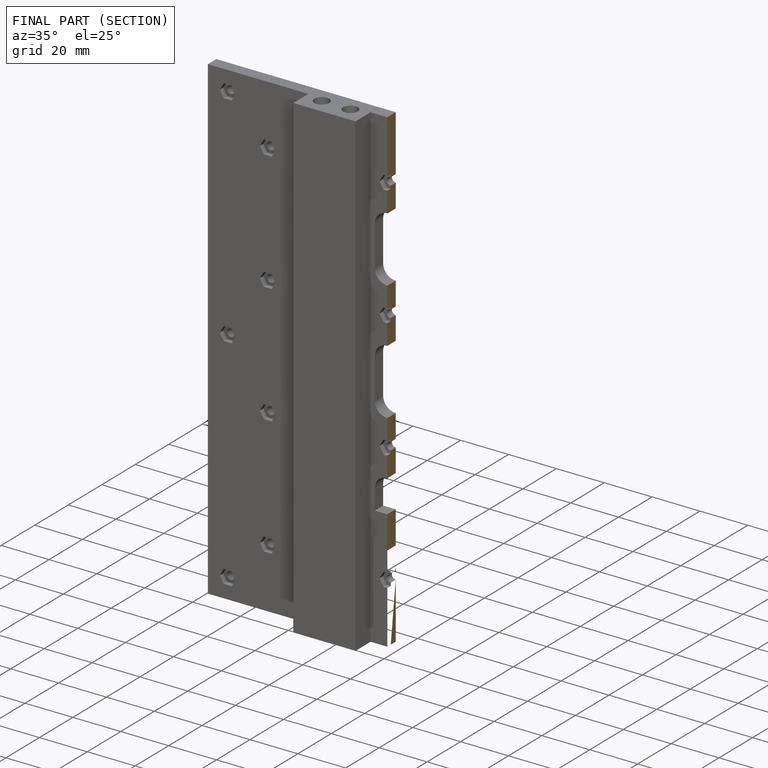
[diagram: finished part — half-section view (interior)]
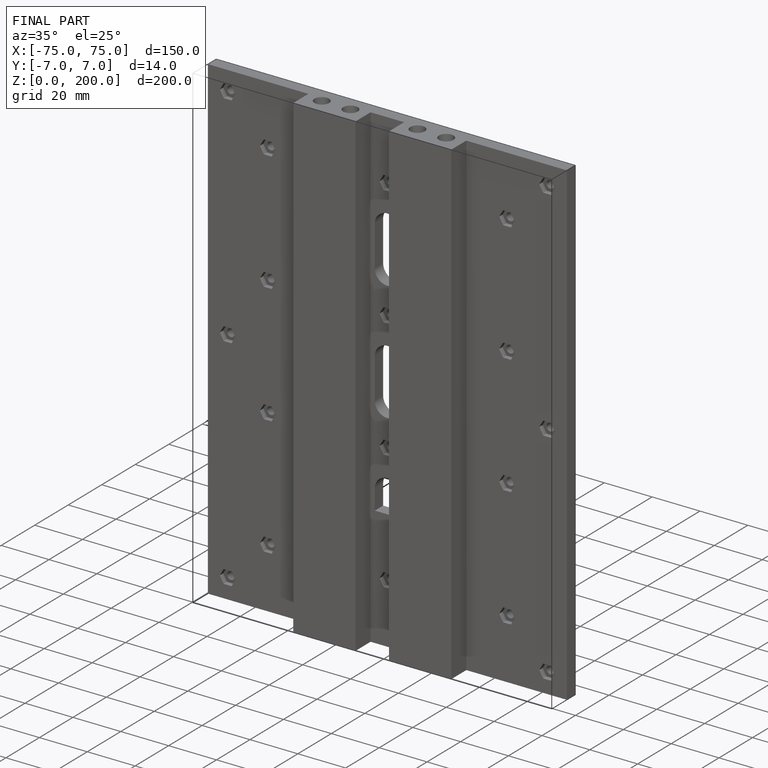
[diagram: finished part — iso view with bounding-box wireframe]
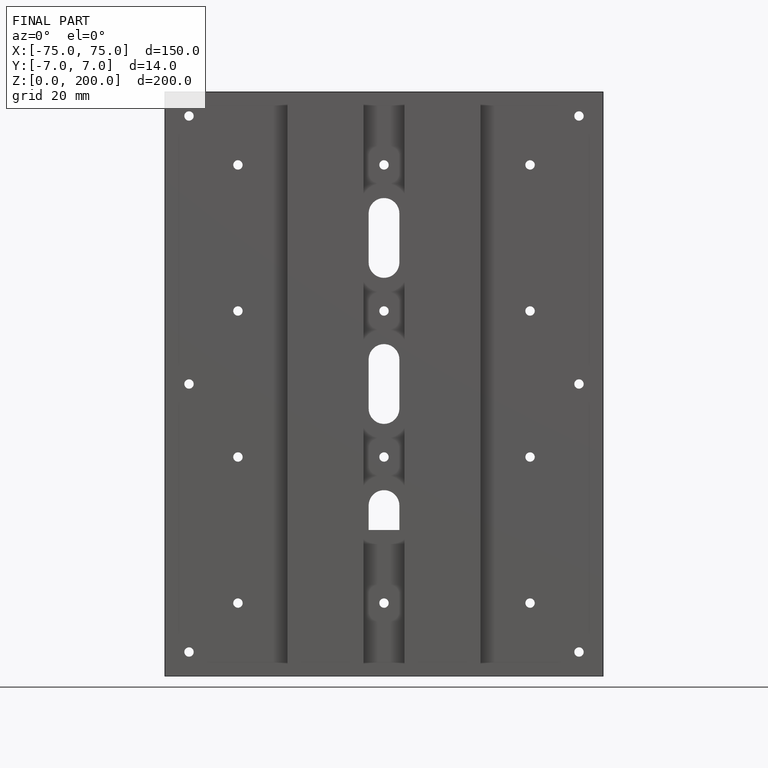
[diagram: finished part — front view with bounding-box wireframe]
